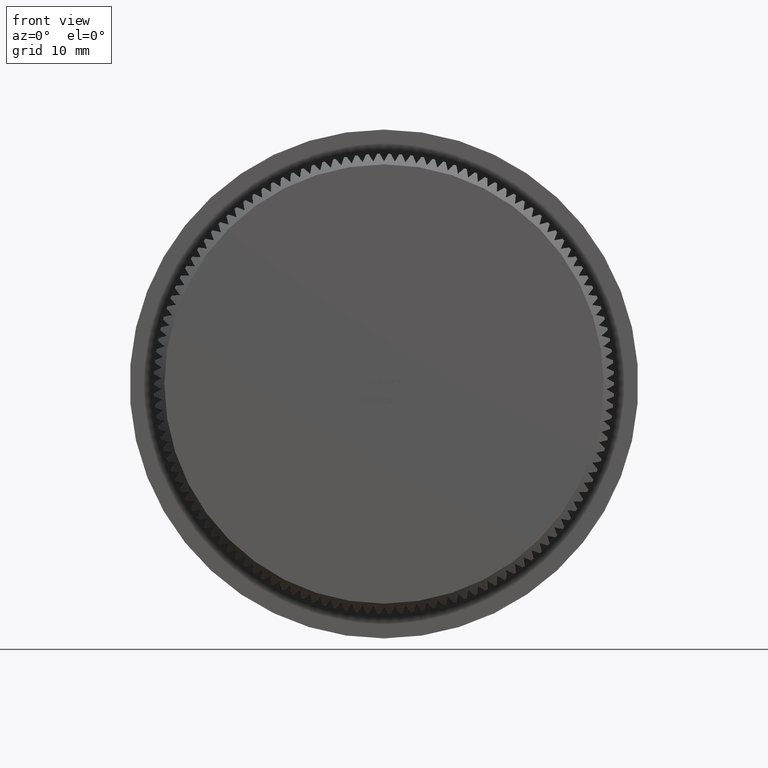
[diagram: clean part render]
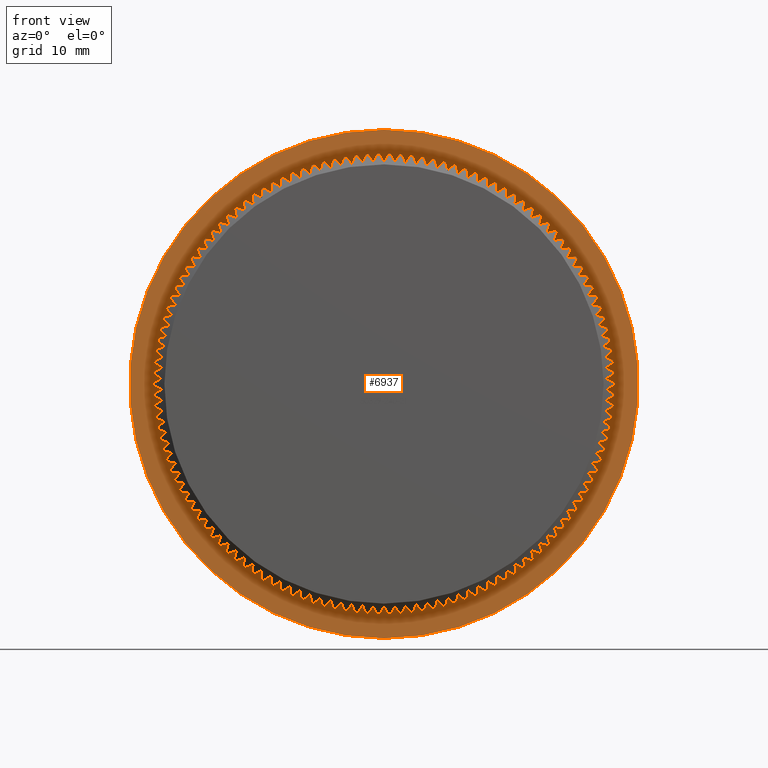
[diagram: same view with one face highlighted and labeled with its STEP entity id]
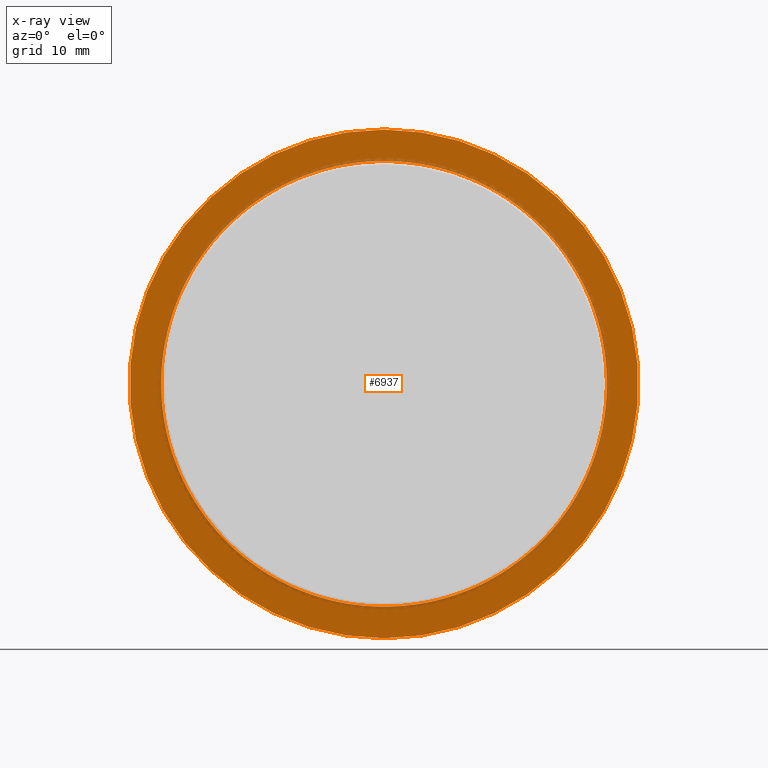
[diagram: x-ray of the same camera — body ghosted, the highlighted face saturated]
A machine part, front view. The second image highlights one B-rep face of the part: STEP entity #6937.
The next image is the same camera in x-ray: the body ghosted, the highlighted face saturated — about 8% of this face is hidden behind the body in this view.
In plain terms, the highlighted planar face has unit normal (0, -1, -0).
Its self-contained STEP definition (entity closure, byte-faithful):
#39 = ORIENTED_EDGE ( 'NONE', *, *, #23851, .F. ) ;
#68 = ORIENTED_EDGE ( 'NONE', *, *, #12948, .F. ) ;
#88 = AXIS2_PLACEMENT_3D ( 'NONE', #11685, #4343, #2020 ) ;
#92 = VERTEX_POINT ( 'NONE', #19919 ) ;
#112 = ORIENTED_EDGE ( 'NONE', *, *, #22344, .F. ) ;
#125 = DIRECTION ( 'NONE',  ( 0.0000000000000000000, 0.0000000000000000000, -1.000000000000000000 ) ) ;
#140 = AXIS2_PLACEMENT_3D ( 'NONE', #15452, #29635, #4168 ) ;
#164 = DIRECTION ( 'NONE',  ( -0.0000000000000000000, -1.000000000000000000, -0.0000000000000000000 ) ) ;
#166 = CIRCLE ( 'NONE', #6958, 21.15000000000000200 ) ;
#176 = DIRECTION ( 'NONE',  ( 0.0000000000000000000, 0.0000000000000000000, -1.000000000000000000 ) ) ;
#221 = AXIS2_PLACEMENT_3D ( 'NONE', #4701, #9382, #125 ) ;
#262 = CARTESIAN_POINT ( 'NONE',  ( -14.77351537501493800, 8.000000000000001800, -15.13491801973824200 ) ) ;
#291 = DIRECTION ( 'NONE',  ( -0.0000000000000000000, -1.000000000000000000, -0.0000000000000000000 ) ) ;
#330 = CIRCLE ( 'NONE', #22834, 21.15000000000000200 ) ;
#345 = CARTESIAN_POINT ( 'NONE',  ( 0.0000000000000000000, 8.000000000000001800, 0.0000000000000000000 ) ) ;
#346 = VERTEX_POINT ( 'NONE', #4799 ) ;
#349 = VERTEX_POINT ( 'NONE', #7249 ) ;
#355 = EDGE_CURVE ( 'NONE', #18658, #12413, #4572, .T. ) ;
#356 = ORIENTED_EDGE ( 'NONE', *, *, #3813, .F. ) ;
#362 = CIRCLE ( 'NONE', #26722, 21.15000000000000200 ) ;
#370 = DIRECTION ( 'NONE',  ( -0.0000000000000000000, -1.000000000000000000, -0.0000000000000000000 ) ) ;
#372 = EDGE_CURVE ( 'NONE', #20997, #5758, #27873, .T. ) ;
#385 = CIRCLE ( 'NONE', #23198, 21.15000000000000200 ) ;
#421 = VERTEX_POINT ( 'NONE', #22660 ) ;
#450 = CIRCLE ( 'NONE', #29831, 21.15000000000000200 ) ;
#451 = DIRECTION ( 'NONE',  ( -0.0000000000000000000, -1.000000000000000000, -0.0000000000000000000 ) ) ;
#459 = CIRCLE ( 'NONE', #2125, 21.15000000000000200 ) ;
#523 = CARTESIAN_POINT ( 'NONE',  ( 0.0000000000000000000, 8.000000000000001800, 0.0000000000000000000 ) ) ;
#571 = CIRCLE ( 'NONE', #18810, 21.15000000000000200 ) ;
#574 = CIRCLE ( 'NONE', #26004, 21.15000000000000200 ) ;
#595 = ORIENTED_EDGE ( 'NONE', *, *, #29790, .F. ) ;
#610 = CARTESIAN_POINT ( 'NONE',  ( 16.16527748954481000, 7.999999999999998200, -13.63841279936987400 ) ) ;
#641 = CARTESIAN_POINT ( 'NONE',  ( -4.063480072030798400, 8.000000000000005300, -20.75597816784862100 ) ) ;
#679 = ORIENTED_EDGE ( 'NONE', *, *, #18831, .F. ) ;
#742 = EDGE_CURVE ( 'NONE', #11721, #7298, #26368, .T. ) ;
#768 = VERTEX_POINT ( 'NONE', #17738 ) ;
#778 = AXIS2_PLACEMENT_3D ( 'NONE', #5178, #28471, #14700 ) ;
#784 = DIRECTION ( 'NONE',  ( -0.0000000000000000000, -1.000000000000000000, -0.0000000000000000000 ) ) ;
#786 = CARTESIAN_POINT ( 'NONE',  ( 18.95942972380402800, 7.999999999999998200, 9.373501189424178600 ) ) ;
#791 = CARTESIAN_POINT ( 'NONE',  ( 0.0000000000000000000, 8.000000000000001800, 0.0000000000000000000 ) ) ;
#801 = EDGE_CURVE ( 'NONE', #4394, #28949, #26741, .T. ) ;
#806 = CARTESIAN_POINT ( 'NONE',  ( -16.80531792594584300, 8.000000000000001800, -12.84148704036582300 ) ) ;
#829 = AXIS2_PLACEMENT_3D ( 'NONE', #1564, #6656, #1867 ) ;
#843 = AXIS2_PLACEMENT_3D ( 'NONE', #27813, #18918, #21061 ) ;
#880 = AXIS2_PLACEMENT_3D ( 'NONE', #23210, #25948, #11928 ) ;
#927 = VERTEX_POINT ( 'NONE', #4587 ) ;
#1034 = CARTESIAN_POINT ( 'NONE',  ( 0.0000000000000000000, 8.000000000000001800, 0.0000000000000000000 ) ) ;
#1036 = EDGE_CURVE ( 'NONE', #14070, #349, #10719, .T. ) ;
#1046 = ORIENTED_EDGE ( 'NONE', *, *, #24700, .F. ) ;
#1056 = DIRECTION ( 'NONE',  ( 0.0000000000000000000, 0.0000000000000000000, -1.000000000000000000 ) ) ;
#1083 = CIRCLE ( 'NONE', #17198, 21.15000000000000200 ) ;
#1174 = VERTEX_POINT ( 'NONE', #14676 ) ;
#1198 = ORIENTED_EDGE ( 'NONE', *, *, #1843, .F. ) ;
#1255 = CIRCLE ( 'NONE', #4245, 21.15000000000000200 ) ;
#1278 = DIRECTION ( 'NONE',  ( -0.0000000000000000000, -1.000000000000000000, -0.0000000000000000000 ) ) ;
#1310 = EDGE_CURVE ( 'NONE', #22046, #9701, #19046, .T. ) ;
#1313 = CARTESIAN_POINT ( 'NONE',  ( -11.59046453055129300, 8.000000000000008900, 17.69134341891628300 ) ) ;
#1342 = CARTESIAN_POINT ( 'NONE',  ( 0.0000000000000000000, 8.000000000000001800, 0.0000000000000000000 ) ) ;
#1400 = DIRECTION ( 'NONE',  ( 0.0000000000000000000, 0.0000000000000000000, -1.000000000000000000 ) ) ;
#1434 = VERTEX_POINT ( 'NONE', #29980 ) ;
#1435 = VERTEX_POINT ( 'NONE', #13336 ) ;
#1436 = DIRECTION ( 'NONE',  ( 0.0000000000000000000, 0.0000000000000000000, -1.000000000000000000 ) ) ;
#1471 = CARTESIAN_POINT ( 'NONE',  ( 20.84810661170445600, 7.999999999999998200, -3.560751424489657400 ) ) ;
#1501 = DIRECTION ( 'NONE',  ( 0.0000000000000000000, 0.0000000000000000000, -1.000000000000000000 ) ) ;
#1519 = AXIS2_PLACEMENT_3D ( 'NONE', #28514, #451, #16689 ) ;
#1533 = CARTESIAN_POINT ( 'NONE',  ( -5.061526299681717400, 8.000000000000005300, -20.53541943856103600 ) ) ;
#1548 = DIRECTION ( 'NONE',  ( -0.0000000000000000000, -1.000000000000000000, -0.0000000000000000000 ) ) ;
#1564 = CARTESIAN_POINT ( 'NONE',  ( 0.0000000000000000000, 8.000000000000001800, 0.0000000000000000000 ) ) ;
#1612 = DIRECTION ( 'NONE',  ( 0.0000000000000000000, 0.0000000000000000000, -1.000000000000000000 ) ) ;
#1618 = VERTEX_POINT ( 'NONE', #24202 ) ;
#1664 = DIRECTION ( 'NONE',  ( 0.0000000000000000000, 0.0000000000000000000, -1.000000000000000000 ) ) ;
#1676 = CARTESIAN_POINT ( 'NONE',  ( 0.0000000000000000000, 8.000000000000001800, 0.0000000000000000000 ) ) ;
#1734 = DIRECTION ( 'NONE',  ( -0.0000000000000000000, -1.000000000000000000, -0.0000000000000000000 ) ) ;
#1830 = DIRECTION ( 'NONE',  ( 0.0000000000000000000, 0.0000000000000000000, -1.000000000000000000 ) ) ;
#1843 = EDGE_CURVE ( 'NONE', #10794, #18658, #1945, .T. ) ;
#1864 = DIRECTION ( 'NONE',  ( -0.0000000000000000000, -1.000000000000000000, -0.0000000000000000000 ) ) ;
#1867 = DIRECTION ( 'NONE',  ( 0.0000000000000000000, 0.0000000000000000000, -1.000000000000000000 ) ) ;
#1902 = VERTEX_POINT ( 'NONE', #16140 ) ;
#1945 = CIRCLE ( 'NONE', #7225, 21.15000000000000200 ) ;
#2020 = DIRECTION ( 'NONE',  ( 0.0000000000000000000, 0.0000000000000000000, -1.000000000000000000 ) ) ;
#2022 = CARTESIAN_POINT ( 'NONE',  ( 0.0000000000000000000, 8.000000000000001800, 0.0000000000000000000 ) ) ;
#2035 = CIRCLE ( 'NONE', #3051, 21.15000000000000200 ) ;
#2041 = CARTESIAN_POINT ( 'NONE',  ( 0.0000000000000000000, 8.000000000000001800, 0.0000000000000000000 ) ) ;
#2059 = CARTESIAN_POINT ( 'NONE',  ( 0.0000000000000000000, 8.000000000000001800, 0.0000000000000000000 ) ) ;
#2063 = CARTESIAN_POINT ( 'NONE',  ( -15.48748229854283700, 8.000000000000005300, -14.40348541334084100 ) ) ;
#2084 = ORIENTED_EDGE ( 'NONE', *, *, #11775, .F. ) ;
#2091 = ORIENTED_EDGE ( 'NONE', *, *, #12194, .F. ) ;
#2102 = EDGE_CURVE ( 'NONE', #9701, #14070, #4867, .T. ) ;
#2125 = AXIS2_PLACEMENT_3D ( 'NONE', #9228, #11660, #18246 ) ;
#2136 = AXIS2_PLACEMENT_3D ( 'NONE', #7892, #16900, #21595 ) ;
#2178 = AXIS2_PLACEMENT_3D ( 'NONE', #29717, #18479, #15725 ) ;
#2216 = DIRECTION ( 'NONE',  ( -0.0000000000000000000, -1.000000000000000000, -0.0000000000000000000 ) ) ;
#2225 = CARTESIAN_POINT ( 'NONE',  ( -6.047751098132291500, 8.000000000000005300, 20.26689928565886200 ) ) ;
#2291 = VERTEX_POINT ( 'NONE', #26267 ) ;
#2296 = CARTESIAN_POINT ( 'NONE',  ( 0.0000000000000000000, 8.000000000000001800, 0.0000000000000000000 ) ) ;
#2391 = ORIENTED_EDGE ( 'NONE', *, *, #24078, .F. ) ;
#2393 = VERTEX_POINT ( 'NONE', #17888 ) ;
#2398 = DIRECTION ( 'NONE',  ( -0.0000000000000000000, -1.000000000000000000, -0.0000000000000000000 ) ) ;
#2406 = ORIENTED_EDGE ( 'NONE', *, *, #14952, .F. ) ;
#2417 = EDGE_CURVE ( 'NONE', #17602, #27043, #28862, .T. ) ;
#2427 = DIRECTION ( 'NONE',  ( -0.0000000000000000000, -1.000000000000000000, -0.0000000000000000000 ) ) ;
#2434 = CARTESIAN_POINT ( 'NONE',  ( 0.0000000000000000000, 8.000000000000001800, 0.0000000000000000000 ) ) ;
#2443 = ORIENTED_EDGE ( 'NONE', *, *, #16198, .F. ) ;
#2447 = CARTESIAN_POINT ( 'NONE',  ( 0.0000000000000000000, 8.000000000000001800, 0.0000000000000000000 ) ) ;
#2449 = DIRECTION ( 'NONE',  ( -0.0000000000000000000, -1.000000000000000000, -0.0000000000000000000 ) ) ;
#2459 = CARTESIAN_POINT ( 'NONE',  ( 0.0000000000000000000, 8.000000000000001800, 0.0000000000000000000 ) ) ;
#2469 = CARTESIAN_POINT ( 'NONE',  ( 0.0000000000000000000, 8.000000000000001800, 0.0000000000000000000 ) ) ;
#2530 = DIRECTION ( 'NONE',  ( 0.0000000000000000000, 0.0000000000000000000, -1.000000000000000000 ) ) ;
#2544 = AXIS2_PLACEMENT_3D ( 'NONE', #4403, #27815, #11530 ) ;
#2572 = ORIENTED_EDGE ( 'NONE', *, *, #24311, .F. ) ;
#2625 = EDGE_CURVE ( 'NONE', #23343, #9985, #19358, .T. ) ;
#2632 = CARTESIAN_POINT ( 'NONE',  ( 1.021827976964182500, 7.999999999999994700, 21.12530159750372500 ) ) ;
#2641 = VERTEX_POINT ( 'NONE', #14325 ) ;
#2645 = ORIENTED_EDGE ( 'NONE', *, *, #9722, .F. ) ;
#2701 = ORIENTED_EDGE ( 'NONE', *, *, #8121, .F. ) ;
#2735 = ORIENTED_EDGE ( 'NONE', *, *, #15390, .F. ) ;
#2744 = AXIS2_PLACEMENT_3D ( 'NONE', #23114, #11535, #4195 ) ;
#2787 = CARTESIAN_POINT ( 'NONE',  ( 18.48442389005094800, 8.000000000000005300, -10.27854919008095200 ) ) ;
#2815 = EDGE_CURVE ( 'NONE', #29550, #5583, #7763, .T. ) ;
#2819 = ORIENTED_EDGE ( 'NONE', *, *, #20275, .F. ) ;
#2828 = VERTEX_POINT ( 'NONE', #806 ) ;
#2848 = CARTESIAN_POINT ( 'NONE',  ( 21.09444211597502400, 8.000000000000001800, 1.531996023421499300 ) ) ;
#2849 = CARTESIAN_POINT ( 'NONE',  ( 0.0000000000000000000, 8.000000000000001800, 0.0000000000000000000 ) ) ;
#2851 = EDGE_CURVE ( 'NONE', #27938, #29550, #28505, .T. ) ;
#2881 = DIRECTION ( 'NONE',  ( 0.0000000000000000000, 0.0000000000000000000, -1.000000000000000000 ) ) ;
#2882 = EDGE_CURVE ( 'NONE', #24568, #1902, #27755, .T. ) ;
#2952 = CARTESIAN_POINT ( 'NONE',  ( 0.0000000000000000000, 8.000000000000001800, 0.0000000000000000000 ) ) ;
#2970 = ORIENTED_EDGE ( 'NONE', *, *, #17165, .F. ) ;
#2969 = AXIS2_PLACEMENT_3D ( 'NONE', #22540, #29490, #3926 ) ;
#3009 = AXIS2_PLACEMENT_3D ( 'NONE', #19462, #24250, #10341 ) ;
#3012 = DIRECTION ( 'NONE',  ( 0.0000000000000000000, 0.0000000000000000000, -1.000000000000000000 ) ) ;
#3023 = CARTESIAN_POINT ( 'NONE',  ( 0.0000000000000000000, 8.000000000000001800, 0.0000000000000000000 ) ) ;
#3033 = DIRECTION ( 'NONE',  ( 0.0000000000000000000, 0.0000000000000000000, -1.000000000000000000 ) ) ;
#3051 = AXIS2_PLACEMENT_3D ( 'NONE', #16043, #27687, #11600 ) ;
#3059 = EDGE_CURVE ( 'NONE', #30211, #1434, #26281, .T. ) ;
#3062 = DIRECTION ( 'NONE',  ( 0.0000000000000000000, 0.0000000000000000000, -1.000000000000000000 ) ) ;
#3108 = AXIS2_PLACEMENT_3D ( 'NONE', #18409, #20645, #25239 ) ;
#3154 = VERTEX_POINT ( 'NONE', #24355 ) ;
#3177 = ORIENTED_EDGE ( 'NONE', *, *, #12746, .F. ) ;
#3189 = AXIS2_PLACEMENT_3D ( 'NONE', #28632, #28731, #14861 ) ;
#3203 = DIRECTION ( 'NONE',  ( 0.0000000000000000000, 0.0000000000000000000, -1.000000000000000000 ) ) ;
#3242 = ORIENTED_EDGE ( 'NONE', *, *, #5005, .F. ) ;
#3250 = CARTESIAN_POINT ( 'NONE',  ( 16.16527748954453600, 8.000000000000005300, 13.63841279937019700 ) ) ;
#3255 = DIRECTION ( 'NONE',  ( -0.0000000000000000000, -1.000000000000000000, -0.0000000000000000000 ) ) ;
#3331 = CARTESIAN_POINT ( 'NONE',  ( 0.0000000000000000000, 8.000000000000001800, 0.0000000000000000000 ) ) ;
#3404 = AXIS2_PLACEMENT_3D ( 'NONE', #19714, #28816, #5818 ) ;
#3497 = AXIS2_PLACEMENT_3D ( 'NONE', #16676, #25957, #16577 ) ;
#3520 = VERTEX_POINT ( 'NONE', #24375 ) ;
#3595 = CIRCLE ( 'NONE', #25003, 21.15000000000000200 ) ;
#3619 = VERTEX_POINT ( 'NONE', #15524 ) ;
#3683 = CARTESIAN_POINT ( 'NONE',  ( 0.0000000000000000000, 8.000000000000001800, 0.0000000000000000000 ) ) ;
#3813 = EDGE_CURVE ( 'NONE', #2641, #7465, #21157, .T. ) ;
#3826 = EDGE_CURVE ( 'NONE', #19473, #2393, #27732, .T. ) ;
#3827 = ORIENTED_EDGE ( 'NONE', *, *, #3826, .F. ) ;
#3869 = EDGE_CURVE ( 'NONE', #21540, #25664, #28452, .T. ) ;
#3877 = ORIENTED_EDGE ( 'NONE', *, *, #22129, .F. ) ;
#3926 = DIRECTION ( 'NONE',  ( 0.0000000000000000000, 0.0000000000000000000, -1.000000000000000000 ) ) ;
#3945 = DIRECTION ( 'NONE',  ( 0.0000000000000000000, 0.0000000000000000000, -1.000000000000000000 ) ) ;
#3995 = CIRCLE ( 'NONE', #2178, 21.15000000000000200 ) ;
#4046 = CARTESIAN_POINT ( 'NONE',  ( 0.0000000000000000000, 8.000000000000001800, 0.0000000000000000000 ) ) ;
#4048 = CARTESIAN_POINT ( 'NONE',  ( 0.0000000000000000000, 8.000000000000001800, 0.0000000000000000000 ) ) ;
#4072 = AXIS2_PLACEMENT_3D ( 'NONE', #22729, #6786, #13454 ) ;
#4081 = EDGE_CURVE ( 'NONE', #421, #11893, #17884, .T. ) ;
#4136 = DIRECTION ( 'NONE',  ( -0.0000000000000000000, -1.000000000000000000, -0.0000000000000000000 ) ) ;
#4141 = CIRCLE ( 'NONE', #16314, 21.15000000000000200 ) ;
#4168 = DIRECTION ( 'NONE',  ( 0.0000000000000000000, 0.0000000000000000000, -1.000000000000000000 ) ) ;
#4195 = DIRECTION ( 'NONE',  ( 0.0000000000000000000, 0.0000000000000000000, -1.000000000000000000 ) ) ;
#4245 = AXIS2_PLACEMENT_3D ( 'NONE', #27178, #25013, #13509 ) ;
#4249 = DIRECTION ( 'NONE',  ( 0.0000000000000000000, 0.0000000000000000000, -1.000000000000000000 ) ) ;
#4283 = CARTESIAN_POINT ( 'NONE',  ( 14.02504422179295700, 7.999999999999998200, -15.83100232381866900 ) ) ;
#4310 = EDGE_CURVE ( 'NONE', #8549, #17170, #20768, .T. ) ;
#4343 = DIRECTION ( 'NONE',  ( -0.0000000000000000000, -1.000000000000000000, -0.0000000000000000000 ) ) ;
#4362 = EDGE_CURVE ( 'NONE', #12413, #7301, #24766, .T. ) ;
#4381 = AXIS2_PLACEMENT_3D ( 'NONE', #10516, #8486, #8586 ) ;
#4393 = EDGE_CURVE ( 'NONE', #10688, #26131, #14583, .T. ) ;
#4394 = VERTEX_POINT ( 'NONE', #9201 ) ;
#4403 = CARTESIAN_POINT ( 'NONE',  ( 0.0000000000000000000, 8.000000000000001800, 0.0000000000000000000 ) ) ;
#4432 = DIRECTION ( 'NONE',  ( -0.0000000000000000000, -1.000000000000000000, -0.0000000000000000000 ) ) ;
#4490 = AXIS2_PLACEMENT_3D ( 'NONE', #29932, #6622, #9050 ) ;
#4572 = CIRCLE ( 'NONE', #17696, 21.15000000000000200 ) ;
#4587 = CARTESIAN_POINT ( 'NONE',  ( -14.02504422179284500, 8.000000000000005300, 15.83100232381876700 ) ) ;
#4591 = CARTESIAN_POINT ( 'NONE',  ( 14.77351537501484000, 8.000000000000005300, 15.13491801973833600 ) ) ;
#4592 = EDGE_CURVE ( 'NONE', #25664, #22880, #17121, .T. ) ;
#4607 = DIRECTION ( 'NONE',  ( 0.0000000000000000000, 0.0000000000000000000, -1.000000000000000000 ) ) ;
#4617 = DIRECTION ( 'NONE',  ( -0.0000000000000000000, -1.000000000000000000, -0.0000000000000000000 ) ) ;
#4622 = ORIENTED_EDGE ( 'NONE', *, *, #15702, .F. ) ;
#4655 = EDGE_CURVE ( 'NONE', #3154, #2641, #20384, .T. ) ;
#4684 = AXIS2_PLACEMENT_3D ( 'NONE', #19141, #7788, #21493 ) ;
#4701 = CARTESIAN_POINT ( 'NONE',  ( 0.0000000000000000000, 8.000000000000001800, 0.0000000000000000000 ) ) ;
#4706 = VERTEX_POINT ( 'NONE', #30134 ) ;
#4707 = CARTESIAN_POINT ( 'NONE',  ( 7.019851093668118700, 7.999999999999991100, 19.95104485040136700 ) ) ;
#4740 = DIRECTION ( 'NONE',  ( 0.0000000000000000000, 0.0000000000000000000, -1.000000000000000000 ) ) ;
#4751 = CIRCLE ( 'NONE', #2744, 21.15000000000000200 ) ;
#4762 = DIRECTION ( 'NONE',  ( 0.0000000000000000000, 0.0000000000000000000, -1.000000000000000000 ) ) ;
#4799 = CARTESIAN_POINT ( 'NONE',  ( -21.09444211597504200, 8.000000000000005300, 1.531996023421204700 ) ) ;
#4808 = DIRECTION ( 'NONE',  ( 0.0000000000000000000, 0.0000000000000000000, -1.000000000000000000 ) ) ;
#4860 = DIRECTION ( 'NONE',  ( -0.0000000000000000000, -1.000000000000000000, -0.0000000000000000000 ) ) ;
#4867 = CIRCLE ( 'NONE', #18891, 21.15000000000000200 ) ;
#4960 = EDGE_CURVE ( 'NONE', #11640, #18677, #18557, .T. ) ;
#4990 = DIRECTION ( 'NONE',  ( -0.0000000000000000000, -1.000000000000000000, -0.0000000000000000000 ) ) ;
#5005 = EDGE_CURVE ( 'NONE', #16742, #346, #9482, .T. ) ;
#5044 = EDGE_CURVE ( 'NONE', #24345, #4706, #22942, .T. ) ;
#5050 = CIRCLE ( 'NONE', #27393, 21.15000000000000200 ) ;
#5067 = ORIENTED_EDGE ( 'NONE', *, *, #22038, .F. ) ;
#5079 = AXIS2_PLACEMENT_3D ( 'NONE', #9786, #19015, #3062 ) ;
#5141 = VERTEX_POINT ( 'NONE', #9289 ) ;
#5147 = CIRCLE ( 'NONE', #2544, 21.15000000000000200 ) ;
#5159 = CARTESIAN_POINT ( 'NONE',  ( 0.0000000000000000000, 8.000000000000001800, 0.0000000000000000000 ) ) ;
#5177 = VERTEX_POINT ( 'NONE', #7347 ) ;
#5178 = CARTESIAN_POINT ( 'NONE',  ( 0.0000000000000000000, 8.000000000000001800, 0.0000000000000000000 ) ) ;
#5214 = AXIS2_PLACEMENT_3D ( 'NONE', #16355, #2449, #7038 ) ;
#5248 = AXIS2_PLACEMENT_3D ( 'NONE', #29375, #22320, #5773 ) ;
#5280 = DIRECTION ( 'NONE',  ( 0.0000000000000000000, 0.0000000000000000000, -1.000000000000000000 ) ) ;
#5294 = DIRECTION ( 'NONE',  ( 0.0000000000000000000, 0.0000000000000000000, -1.000000000000000000 ) ) ;
#5298 = EDGE_CURVE ( 'NONE', #17455, #1435, #22206, .T. ) ;
#5301 = EDGE_CURVE ( 'NONE', #20036, #19967, #28060, .T. ) ;
#5319 = DIRECTION ( 'NONE',  ( 0.0000000000000000000, 0.0000000000000000000, -1.000000000000000000 ) ) ;
#5389 = ORIENTED_EDGE ( 'NONE', *, *, #14144, .F. ) ;
#5411 = VERTEX_POINT ( 'NONE', #22685 ) ;
#5455 = CARTESIAN_POINT ( 'NONE',  ( 0.0000000000000000000, 8.000000000000001800, 0.0000000000000000000 ) ) ;
#5461 = DIRECTION ( 'NONE',  ( -0.0000000000000000000, -1.000000000000000000, -0.0000000000000000000 ) ) ;
#5489 = VERTEX_POINT ( 'NONE', #11816 ) ;
#5512 = AXIS2_PLACEMENT_3D ( 'NONE', #15507, #8730, #29693 ) ;
#5535 = CIRCLE ( 'NONE', #10295, 21.15000000000000200 ) ;
#5559 = AXIS2_PLACEMENT_3D ( 'NONE', #3683, #17310, #28943 ) ;
#5572 = CARTESIAN_POINT ( 'NONE',  ( 0.0000000000000000000, 8.000000000000001800, 0.0000000000000000000 ) ) ;
#5583 = VERTEX_POINT ( 'NONE', #10133 ) ;
#5716 = EDGE_CURVE ( 'NONE', #9640, #26710, #3595, .T. ) ;
#5739 = ORIENTED_EDGE ( 'NONE', *, *, #5301, .F. ) ;
#5758 = VERTEX_POINT ( 'NONE', #24536 ) ;
#5773 = DIRECTION ( 'NONE',  ( 0.0000000000000000000, 0.0000000000000000000, -1.000000000000000000 ) ) ;
#5796 = CARTESIAN_POINT ( 'NONE',  ( 0.0000000000000000000, 8.000000000000001800, 0.0000000000000000000 ) ) ;
#5818 = DIRECTION ( 'NONE',  ( 0.0000000000000000000, 0.0000000000000000000, -1.000000000000000000 ) ) ;
#5829 = DIRECTION ( 'NONE',  ( -0.0000000000000000000, -1.000000000000000000, -0.0000000000000000000 ) ) ;
#5853 = CARTESIAN_POINT ( 'NONE',  ( -1.021827976964477100, 7.999999999999994700, 21.12530159750371100 ) ) ;
#5868 = ORIENTED_EDGE ( 'NONE', *, *, #12128, .F. ) ;
#5894 = CIRCLE ( 'NONE', #22790, 21.15000000000000200 ) ;
#5928 = CIRCLE ( 'NONE', #8367, 21.15000000000000200 ) ;
#5964 = ORIENTED_EDGE ( 'NONE', *, *, #27325, .F. ) ;
#5970 = CARTESIAN_POINT ( 'NONE',  ( 0.0000000000000000000, 8.000000000000001800, 0.0000000000000000000 ) ) ;
#5972 = ORIENTED_EDGE ( 'NONE', *, *, #12696, .F. ) ;
#6022 = EDGE_CURVE ( 'NONE', #9192, #5411, #15948, .T. ) ;
#6028 = CIRCLE ( 'NONE', #25474, 21.15000000000000200 ) ;
#6072 = DIRECTION ( 'NONE',  ( -0.0000000000000000000, -1.000000000000000000, -0.0000000000000000000 ) ) ;
#6077 = VERTEX_POINT ( 'NONE', #10706 ) ;
#6118 = DIRECTION ( 'NONE',  ( 0.0000000000000000000, 0.0000000000000000000, -1.000000000000000000 ) ) ;
#6138 = CIRCLE ( 'NONE', #15814, 21.15000000000000200 ) ;
#6143 = AXIS2_PLACEMENT_3D ( 'NONE', #2022, #29710, #1830 ) ;
#6155 = FACE_OUTER_BOUND ( 'NONE', #26740, .T. ) ;
#6195 = EDGE_CURVE ( 'NONE', #9366, #9192, #22886, .T. ) ;
#6234 = VERTEX_POINT ( 'NONE', #6450 ) ;
#6253 = EDGE_CURVE ( 'NONE', #1434, #17933, #1083, .T. ) ;
#6255 = DIRECTION ( 'NONE',  ( -0.0000000000000000000, -1.000000000000000000, -0.0000000000000000000 ) ) ;
#6315 = DIRECTION ( 'NONE',  ( -0.0000000000000000000, -1.000000000000000000, -0.0000000000000000000 ) ) ;
#6339 = CARTESIAN_POINT ( 'NONE',  ( -20.65172881723908900, 7.999999999999998200, -4.563835761639181100 ) ) ;
#6365 = VERTEX_POINT ( 'NONE', #4707 ) ;
#6387 = ORIENTED_EDGE ( 'NONE', *, *, #27222, .F. ) ;
#6412 = AXIS2_PLACEMENT_3D ( 'NONE', #3331, #12600, #28884 ) ;
#6414 = DIRECTION ( 'NONE',  ( 0.0000000000000000000, 0.0000000000000000000, -1.000000000000000000 ) ) ;
#6416 = ORIENTED_EDGE ( 'NONE', *, *, #7408, .F. ) ;
#6448 = ORIENTED_EDGE ( 'NONE', *, *, #15428, .F. ) ;
#6450 = CARTESIAN_POINT ( 'NONE',  ( 14.77351537501514900, 8.000000000000005300, -15.13491801973803200 ) ) ;
#6519 = EDGE_CURVE ( 'NONE', #9071, #768, #11966, .T. ) ;
#6521 = CARTESIAN_POINT ( 'NONE',  ( 0.0000000000000000000, 8.000000000000001800, 0.0000000000000000000 ) ) ;
#6541 = CIRCLE ( 'NONE', #24781, 21.15000000000000200 ) ;
#6553 = ORIENTED_EDGE ( 'NONE', *, *, #17660, .F. ) ;
#6555 = CARTESIAN_POINT ( 'NONE',  ( -20.11484531964252300, 7.999999999999988500, 6.535709431030082500 ) ) ;
#6586 = VERTEX_POINT ( 'NONE', #15018 ) ;
#6597 = VERTEX_POINT ( 'NONE', #12711 ) ;
#6622 = DIRECTION ( 'NONE',  ( -0.0000000000000000000, -1.000000000000000000, -0.0000000000000000000 ) ) ;
#6635 = ORIENTED_EDGE ( 'NONE', *, *, #8291, .F. ) ;
#6656 = DIRECTION ( 'NONE',  ( -0.0000000000000000000, -1.000000000000000000, -0.0000000000000000000 ) ) ;
#6696 = EDGE_CURVE ( 'NONE', #23367, #14689, #9425, .T. ) ;
#6751 = DIRECTION ( 'NONE',  ( -0.0000000000000000000, -1.000000000000000000, -0.0000000000000000000 ) ) ;
#6754 = DIRECTION ( 'NONE',  ( 0.0000000000000000000, 0.0000000000000000000, -1.000000000000000000 ) ) ;
#6786 = DIRECTION ( 'NONE',  ( -0.0000000000000000000, -1.000000000000000000, -0.0000000000000000000 ) ) ;
#6842 = VERTEX_POINT ( 'NONE', #18772 ) ;
#6883 = CIRCLE ( 'NONE', #22243, 21.15000000000000200 ) ;
#6920 = ORIENTED_EDGE ( 'NONE', *, *, #19742, .F. ) ;
#6937 = ADVANCED_FACE ( 'NONE', ( #6155, #19570 ), #26413, .T. ) ;
#6958 = AXIS2_PLACEMENT_3D ( 'NONE', #25998, #19058, #16807 ) ;
#7002 = CARTESIAN_POINT ( 'NONE',  ( 0.0000000000000000000, 8.000000000000001800, 0.0000000000000000000 ) ) ;
#7007 = DIRECTION ( 'NONE',  ( 0.0000000000000000000, 0.0000000000000000000, -1.000000000000000000 ) ) ;
#7038 = DIRECTION ( 'NONE',  ( 0.0000000000000000000, 0.0000000000000000000, -1.000000000000000000 ) ) ;
#7044 = ORIENTED_EDGE ( 'NONE', *, *, #4081, .F. ) ;
#7053 = CARTESIAN_POINT ( 'NONE',  ( 0.0000000000000000000, 8.000000000000000000, 0.0000000000000000000 ) ) ;
#7102 = CARTESIAN_POINT ( 'NONE',  ( 0.0000000000000000000, 8.000000000000001800, 0.0000000000000000000 ) ) ;
#7111 = ORIENTED_EDGE ( 'NONE', *, *, #4592, .F. ) ;
#7186 = EDGE_CURVE ( 'NONE', #6842, #16037, #10489, .T. ) ;
#7195 = CIRCLE ( 'NONE', #17203, 24.14999999999999900 ) ;
#7210 = CIRCLE ( 'NONE', #3189, 21.15000000000000200 ) ;
#7225 = AXIS2_PLACEMENT_3D ( 'NONE', #29621, #27062, #15437 ) ;
#7226 = VERTEX_POINT ( 'NONE', #29994 ) ;
#7249 = CARTESIAN_POINT ( 'NONE',  ( -18.95942972380409600, 8.000000000000001800, -9.373501189424038300 ) ) ;
#7266 = DIRECTION ( 'NONE',  ( 0.0000000000000000000, 0.0000000000000000000, -1.000000000000000000 ) ) ;
#7298 = VERTEX_POINT ( 'NONE', #262 ) ;
#7301 = VERTEX_POINT ( 'NONE', #7471 ) ;
#7304 = ORIENTED_EDGE ( 'NONE', *, *, #1036, .F. ) ;
#7347 = CARTESIAN_POINT ( 'NONE',  ( -21.14382449779608600, 7.999999999999998200, -0.5110632117442733800 ) ) ;
#7408 = EDGE_CURVE ( 'NONE', #1435, #5489, #15188, .T. ) ;
#7428 = DIRECTION ( 'NONE',  ( 0.0000000000000000000, 0.0000000000000000000, -1.000000000000000000 ) ) ;
#7465 = VERTEX_POINT ( 'NONE', #6339 ) ;
#7470 = CIRCLE ( 'NONE', #12412, 21.15000000000000200 ) ;
#7471 = CARTESIAN_POINT ( 'NONE',  ( 17.40610876365093800, 8.000000000000008900, -12.01456939336379500 ) ) ;
#7553 = VERTEX_POINT ( 'NONE', #20221 ) ;
#7618 = ORIENTED_EDGE ( 'NONE', *, *, #7186, .F. ) ;
#7620 = DIRECTION ( 'NONE',  ( 0.0000000000000000000, 0.0000000000000000000, -1.000000000000000000 ) ) ;
#7623 = CARTESIAN_POINT ( 'NONE',  ( 0.0000000000000000000, 8.000000000000001800, 0.0000000000000000000 ) ) ;
#7703 = ORIENTED_EDGE ( 'NONE', *, *, #5298, .F. ) ;
#7763 = CIRCLE ( 'NONE', #23007, 21.15000000000000200 ) ;
#7783 = DIRECTION ( 'NONE',  ( -0.0000000000000000000, -1.000000000000000000, -0.0000000000000000000 ) ) ;
#7788 = DIRECTION ( 'NONE',  ( -0.0000000000000000000, -1.000000000000000000, -0.0000000000000000000 ) ) ;
#7806 = DIRECTION ( 'NONE',  ( -0.0000000000000000000, -1.000000000000000000, -0.0000000000000000000 ) ) ;
#7817 = ORIENTED_EDGE ( 'NONE', *, *, #20876, .F. ) ;
#7838 = AXIS2_PLACEMENT_3D ( 'NONE', #5796, #12802, #8328 ) ;
#7865 = CARTESIAN_POINT ( 'NONE',  ( 0.0000000000000000000, 8.000000000000001800, 0.0000000000000000000 ) ) ;
#7892 = CARTESIAN_POINT ( 'NONE',  ( 0.0000000000000000000, 8.000000000000001800, 0.0000000000000000000 ) ) ;
#7909 = EDGE_CURVE ( 'NONE', #25142, #8490, #12340, .T. ) ;
#7918 = CARTESIAN_POINT ( 'NONE',  ( 20.99579268717386800, 8.000000000000005300, -2.549350787399869800 ) ) ;
#7922 = CARTESIAN_POINT ( 'NONE',  ( 0.0000000000000000000, 8.000000000000001800, 0.0000000000000000000 ) ) ;
#7931 = ORIENTED_EDGE ( 'NONE', *, *, #11983, .F. ) ;
#7980 = CARTESIAN_POINT ( 'NONE',  ( 0.0000000000000000000, 8.000000000000001800, 0.0000000000000000000 ) ) ;
#8031 = EDGE_CURVE ( 'NONE', #8490, #29745, #25435, .T. ) ;
#8042 = VERTEX_POINT ( 'NONE', #8154 ) ;
#8049 = CARTESIAN_POINT ( 'NONE',  ( 6.047751098132437200, 8.000000000000001800, -20.26689928565882000 ) ) ;
#8054 = DIRECTION ( 'NONE',  ( 0.0000000000000000000, 0.0000000000000000000, -1.000000000000000000 ) ) ;
#8062 = AXIS2_PLACEMENT_3D ( 'NONE', #12314, #26651, #15025 ) ;
#8068 = AXIS2_PLACEMENT_3D ( 'NONE', #2849, #9960, #21245 ) ;
#8121 = EDGE_CURVE ( 'NONE', #11136, #25238, #5050, .T. ) ;
#8139 = AXIS2_PLACEMENT_3D ( 'NONE', #23362, #2427, #4762 ) ;
#8154 = CARTESIAN_POINT ( 'NONE',  ( 2.957522019940857900E-015, 8.000000000000000000, 24.14999999999999900 ) ) ;
#8196 = ORIENTED_EDGE ( 'NONE', *, *, #9588, .F. ) ;
#8242 = VERTEX_POINT ( 'NONE', #27884 ) ;
#8291 = EDGE_CURVE ( 'NONE', #19486, #3619, #15927, .T. ) ;
#8319 = ORIENTED_EDGE ( 'NONE', *, *, #27536, .F. ) ;
#8326 = EDGE_CURVE ( 'NONE', #18005, #27957, #9769, .T. ) ;
#8328 = DIRECTION ( 'NONE',  ( 0.0000000000000000000, 0.0000000000000000000, -1.000000000000000000 ) ) ;
#8367 = AXIS2_PLACEMENT_3D ( 'NONE', #523, #23701, #11931 ) ;
#8390 = CARTESIAN_POINT ( 'NONE',  ( 20.99579268717382200, 7.999999999999991100, 2.549350787400310300 ) ) ;
#8401 = DIRECTION ( 'NONE',  ( 0.0000000000000000000, 0.0000000000000000000, -1.000000000000000000 ) ) ;
#8435 = ORIENTED_EDGE ( 'NONE', *, *, #4960, .F. ) ;
#8446 = CIRCLE ( 'NONE', #778, 21.15000000000000200 ) ;
#8456 = DIRECTION ( 'NONE',  ( 0.0000000000000000000, 0.0000000000000000000, -1.000000000000000000 ) ) ;
#8463 = DIRECTION ( 'NONE',  ( -0.0000000000000000000, -1.000000000000000000, -0.0000000000000000000 ) ) ;
#8486 = DIRECTION ( 'NONE',  ( -0.0000000000000000000, -1.000000000000000000, -0.0000000000000000000 ) ) ;
#8490 = VERTEX_POINT ( 'NONE', #15299 ) ;
#8549 = VERTEX_POINT ( 'NONE', #29081 ) ;
#8578 = CARTESIAN_POINT ( 'NONE',  ( 0.0000000000000000000, 8.000000000000001800, 0.0000000000000000000 ) ) ;
#8586 = DIRECTION ( 'NONE',  ( 0.0000000000000000000, 0.0000000000000000000, -1.000000000000000000 ) ) ;
#8605 = ORIENTED_EDGE ( 'NONE', *, *, #4362, .F. ) ;
#8660 = DIRECTION ( 'NONE',  ( 0.0000000000000000000, 0.0000000000000000000, -1.000000000000000000 ) ) ;
#8730 = DIRECTION ( 'NONE',  ( -0.0000000000000000000, -1.000000000000000000, -0.0000000000000000000 ) ) ;
#8736 = EDGE_CURVE ( 'NONE', #27957, #10705, #11581, .T. ) ;
#8741 = DIRECTION ( 'NONE',  ( 0.0000000000000000000, 0.0000000000000000000, -1.000000000000000000 ) ) ;
#8812 = ORIENTED_EDGE ( 'NONE', *, *, #2625, .F. ) ;
#8839 = CARTESIAN_POINT ( 'NONE',  ( 1.021827976964625200, 7.999999999999994700, -21.12530159750370400 ) ) ;
#8865 = CIRCLE ( 'NONE', #27037, 21.15000000000000200 ) ;
#8876 = CIRCLE ( 'NONE', #12232, 21.15000000000000200 ) ;
#8937 = CIRCLE ( 'NONE', #8139, 21.15000000000000200 ) ;
#9013 = EDGE_CURVE ( 'NONE', #20990, #9225, #26109, .T. ) ;
#9050 = DIRECTION ( 'NONE',  ( 0.0000000000000000000, 0.0000000000000000000, -1.000000000000000000 ) ) ;
#9060 = CIRCLE ( 'NONE', #8068, 21.15000000000000200 ) ;
#9071 = VERTEX_POINT ( 'NONE', #17716 ) ;
#9080 = DIRECTION ( 'NONE',  ( 0.0000000000000000000, 0.0000000000000000000, -1.000000000000000000 ) ) ;
#9192 = VERTEX_POINT ( 'NONE', #25668 ) ;
#9201 = CARTESIAN_POINT ( 'NONE',  ( -4.063480072030942300, 7.999999999999994700, 20.75597816784859600 ) ) ;
#9204 = ORIENTED_EDGE ( 'NONE', *, *, #13014, .F. ) ;
#9225 = VERTEX_POINT ( 'NONE', #21276 ) ;
#9228 = CARTESIAN_POINT ( 'NONE',  ( 0.0000000000000000000, 8.000000000000001800, 0.0000000000000000000 ) ) ;
#9229 = AXIS2_PLACEMENT_3D ( 'NONE', #21164, #11629, #7266 ) ;
#9236 = EDGE_CURVE ( 'NONE', #6586, #421, #27585, .T. ) ;
#9237 = ORIENTED_EDGE ( 'NONE', *, *, #22519, .F. ) ;
#9245 = CARTESIAN_POINT ( 'NONE',  ( -6.047751098132152900, 8.000000000000005300, -20.26689928565890500 ) ) ;
#9289 = CARTESIAN_POINT ( 'NONE',  ( -14.02504422179273600, 8.000000000000005300, -15.83100232381886500 ) ) ;
#9339 = ORIENTED_EDGE ( 'NONE', *, *, #25895, .F. ) ;
#9366 = VERTEX_POINT ( 'NONE', #10490 ) ;
#9382 = DIRECTION ( 'NONE',  ( -0.0000000000000000000, -1.000000000000000000, -0.0000000000000000000 ) ) ;
#9385 = CARTESIAN_POINT ( 'NONE',  ( 6.047751098132011700, 8.000000000000005300, 20.26689928565894400 ) ) ;
#9425 = CIRCLE ( 'NONE', #88, 21.15000000000000200 ) ;
#9434 = VERTEX_POINT ( 'NONE', #22372 ) ;
#9435 = CARTESIAN_POINT ( 'NONE',  ( 20.65172881723905400, 8.000000000000005300, 4.563835761639329500 ) ) ;
#9450 = EDGE_CURVE ( 'NONE', #349, #9071, #6028, .T. ) ;
#9470 = DIRECTION ( 'NONE',  ( -0.0000000000000000000, -1.000000000000000000, -0.0000000000000000000 ) ) ;
#9482 = CIRCLE ( 'NONE', #829, 21.15000000000000200 ) ;
#9510 = CARTESIAN_POINT ( 'NONE',  ( 0.0000000000000000000, 8.000000000000001800, 0.0000000000000000000 ) ) ;
#9512 = CIRCLE ( 'NONE', #24330, 21.15000000000000200 ) ;
#9588 = EDGE_CURVE ( 'NONE', #27704, #2291, #26174, .T. ) ;
#9628 = EDGE_CURVE ( 'NONE', #21710, #7553, #25789, .T. ) ;
#9640 = VERTEX_POINT ( 'NONE', #23287 ) ;
#9701 = VERTEX_POINT ( 'NONE', #12670 ) ;
#9714 = CARTESIAN_POINT ( 'NONE',  ( 19.39015493094579800, 8.000000000000001800, -8.446560942414281600 ) ) ;
#9722 = EDGE_CURVE ( 'NONE', #28561, #22046, #8865, .T. ) ;
#9726 = EDGE_CURVE ( 'NONE', #18125, #20248, #5535, .T. ) ;
#9747 = AXIS2_PLACEMENT_3D ( 'NONE', #26717, #19669, #1501 ) ;
#9769 = CIRCLE ( 'NONE', #22688, 21.15000000000000200 ) ;
#9786 = CARTESIAN_POINT ( 'NONE',  ( 0.0000000000000000000, 8.000000000000001800, 0.0000000000000000000 ) ) ;
#9846 = DIRECTION ( 'NONE',  ( 0.0000000000000000000, 0.0000000000000000000, -1.000000000000000000 ) ) ;
#9894 = DIRECTION ( 'NONE',  ( -0.0000000000000000000, -1.000000000000000000, -0.0000000000000000000 ) ) ;
#9954 = CARTESIAN_POINT ( 'NONE',  ( 0.0000000000000000000, 8.000000000000001800, 0.0000000000000000000 ) ) ;
#9958 = AXIS2_PLACEMENT_3D ( 'NONE', #20791, #27847, #25588 ) ;
#9960 = DIRECTION ( 'NONE',  ( -0.0000000000000000000, -1.000000000000000000, -0.0000000000000000000 ) ) ;
#9985 = VERTEX_POINT ( 'NONE', #1533 ) ;
#10006 = AXIS2_PLACEMENT_3D ( 'NONE', #14763, #7783, #19433 ) ;
#10011 = AXIS2_PLACEMENT_3D ( 'NONE', #27021, #15293, #1400 ) ;
#10035 = DIRECTION ( 'NONE',  ( 0.0000000000000000000, 0.0000000000000000000, -1.000000000000000000 ) ) ;
#10041 = ORIENTED_EDGE ( 'NONE', *, *, #11809, .F. ) ;
#10066 = CARTESIAN_POINT ( 'NONE',  ( 0.0000000000000000000, 8.000000000000001800, 0.0000000000000000000 ) ) ;
#10098 = CARTESIAN_POINT ( 'NONE',  ( 0.0000000000000000000, 8.000000000000001800, 0.0000000000000000000 ) ) ;
#10123 = CARTESIAN_POINT ( 'NONE',  ( 0.0000000000000000000, 8.000000000000001800, 0.0000000000000000000 ) ) ;
#10128 = DIRECTION ( 'NONE',  ( 0.0000000000000000000, 0.0000000000000000000, -1.000000000000000000 ) ) ;
#10133 = CARTESIAN_POINT ( 'NONE',  ( 17.96624682782003600, 8.000000000000005300, 11.15959116284492600 ) ) ;
#10162 = EDGE_CURVE ( 'NONE', #22880, #6586, #19772, .T. ) ;
#10164 = VERTEX_POINT ( 'NONE', #2225 ) ;
#10185 = CARTESIAN_POINT ( 'NONE',  ( 0.0000000000000000000, 8.000000000000001800, 0.0000000000000000000 ) ) ;
#10224 = CIRCLE ( 'NONE', #5079, 21.15000000000000200 ) ;
#10248 = DIRECTION ( 'NONE',  ( -0.0000000000000000000, -1.000000000000000000, -0.0000000000000000000 ) ) ;
#10258 = DIRECTION ( 'NONE',  ( -0.0000000000000000000, -1.000000000000000000, -0.0000000000000000000 ) ) ;
#10268 = DIRECTION ( 'NONE',  ( 0.0000000000000000000, 0.0000000000000000000, -1.000000000000000000 ) ) ;
#10295 = AXIS2_PLACEMENT_3D ( 'NONE', #12469, #19749, #10128 ) ;
#10341 = DIRECTION ( 'NONE',  ( 0.0000000000000000000, 0.0000000000000000000, -1.000000000000000000 ) ) ;
#10365 = AXIS2_PLACEMENT_3D ( 'NONE', #10185, #3255, #8054 ) ;
#10405 = DIRECTION ( 'NONE',  ( 0.0000000000000000000, 0.0000000000000000000, -1.000000000000000000 ) ) ;
#10451 = ORIENTED_EDGE ( 'NONE', *, *, #17876, .F. ) ;
#10464 = EDGE_CURVE ( 'NONE', #23547, #21710, #12517, .T. ) ;
#10472 = CARTESIAN_POINT ( 'NONE',  ( -13.24381692793535900, 8.000000000000001800, 16.49011258843713500 ) ) ;
#10489 = CIRCLE ( 'NONE', #29132, 21.15000000000000200 ) ;
#10490 = CARTESIAN_POINT ( 'NONE',  ( 10.72220090815758600, 7.999999999999998200, -18.23065845451295900 ) ) ;
#10511 = CARTESIAN_POINT ( 'NONE',  ( 0.0000000000000000000, 8.000000000000001800, 0.0000000000000000000 ) ) ;
#10516 = CARTESIAN_POINT ( 'NONE',  ( 0.0000000000000000000, 8.000000000000001800, 0.0000000000000000000 ) ) ;
#10530 = VERTEX_POINT ( 'NONE', #7918 ) ;
#10589 = VERTEX_POINT ( 'NONE', #24955 ) ;
#10600 = EDGE_CURVE ( 'NONE', #24242, #27116, #15402, .T. ) ;
#10684 = DIRECTION ( 'NONE',  ( -0.0000000000000000000, -1.000000000000000000, -0.0000000000000000000 ) ) ;
#10688 = VERTEX_POINT ( 'NONE', #27627 ) ;
#10702 = CARTESIAN_POINT ( 'NONE',  ( 0.0000000000000000000, 8.000000000000001800, 0.0000000000000000000 ) ) ;
#10705 = VERTEX_POINT ( 'NONE', #20882 ) ;
#10706 = CARTESIAN_POINT ( 'NONE',  ( -21.09444211597503500, 8.000000000000001800, -1.531996023421352100 ) ) ;
#10719 = CIRCLE ( 'NONE', #29051, 21.15000000000000200 ) ;
#10731 = CIRCLE ( 'NONE', #22109, 21.15000000000000200 ) ;
#10784 = DIRECTION ( 'NONE',  ( -0.0000000000000000000, -1.000000000000000000, -0.0000000000000000000 ) ) ;
#10794 = VERTEX_POINT ( 'NONE', #21288 ) ;
#10806 = CARTESIAN_POINT ( 'NONE',  ( 0.0000000000000000000, 8.000000000000001800, 0.0000000000000000000 ) ) ;
#10826 = ORIENTED_EDGE ( 'NONE', *, *, #23349, .F. ) ;
#10909 = CIRCLE ( 'NONE', #22426, 21.15000000000000200 ) ;
#10931 = AXIS2_PLACEMENT_3D ( 'NONE', #16122, #291, #20908 ) ;
#10935 = CARTESIAN_POINT ( 'NONE',  ( -12.43165808598571200, 8.000000000000005300, -17.11070943103020900 ) ) ;
#10939 = ORIENTED_EDGE ( 'NONE', *, *, #22401, .F. ) ;
#10975 = CARTESIAN_POINT ( 'NONE',  ( 0.0000000000000000000, 8.000000000000001800, 0.0000000000000000000 ) ) ;
#11011 = DIRECTION ( 'NONE',  ( 0.0000000000000000000, 0.0000000000000000000, -1.000000000000000000 ) ) ;
#11021 = AXIS2_PLACEMENT_3D ( 'NONE', #27858, #11365, #13677 ) ;
#11023 = ORIENTED_EDGE ( 'NONE', *, *, #15424, .F. ) ;
#11078 = DIRECTION ( 'NONE',  ( -0.0000000000000000000, -1.000000000000000000, -0.0000000000000000000 ) ) ;
#11136 = VERTEX_POINT ( 'NONE', #15968 ) ;
#11149 = AXIS2_PLACEMENT_3D ( 'NONE', #4046, #4136, #6414 ) ;
#11159 = ORIENTED_EDGE ( 'NONE', *, *, #24430, .F. ) ;
#11235 = CARTESIAN_POINT ( 'NONE',  ( 0.0000000000000000000, 8.000000000000001800, 0.0000000000000000000 ) ) ;
#11296 = AXIS2_PLACEMENT_3D ( 'NONE', #29460, #1278, #17819 ) ;
#11365 = DIRECTION ( 'NONE',  ( -0.0000000000000000000, -1.000000000000000000, -0.0000000000000000000 ) ) ;
#11394 = DIRECTION ( 'NONE',  ( -0.0000000000000000000, -1.000000000000000000, -0.0000000000000000000 ) ) ;
#11410 = DIRECTION ( 'NONE',  ( -0.0000000000000000000, -1.000000000000000000, -0.0000000000000000000 ) ) ;
#11427 = DIRECTION ( 'NONE',  ( 0.0000000000000000000, 0.0000000000000000000, -1.000000000000000000 ) ) ;
#11530 = DIRECTION ( 'NONE',  ( 0.0000000000000000000, 0.0000000000000000000, -1.000000000000000000 ) ) ;
#11535 = DIRECTION ( 'NONE',  ( -0.0000000000000000000, -1.000000000000000000, -0.0000000000000000000 ) ) ;
#11543 = CARTESIAN_POINT ( 'NONE',  ( 0.0000000000000000000, 8.000000000000001800, 0.0000000000000000000 ) ) ;
#11547 = DIRECTION ( 'NONE',  ( -0.0000000000000000000, -1.000000000000000000, -0.0000000000000000000 ) ) ;
#11581 = CIRCLE ( 'NONE', #12188, 21.15000000000000200 ) ;
#11600 = DIRECTION ( 'NONE',  ( 0.0000000000000000000, 0.0000000000000000000, -1.000000000000000000 ) ) ;
#11629 = DIRECTION ( 'NONE',  ( -0.0000000000000000000, -1.000000000000000000, -0.0000000000000000000 ) ) ;
#11640 = VERTEX_POINT ( 'NONE', #15865 ) ;
#11660 = DIRECTION ( 'NONE',  ( -0.0000000000000000000, -1.000000000000000000, -0.0000000000000000000 ) ) ;
#11685 = CARTESIAN_POINT ( 'NONE',  ( 0.0000000000000000000, 8.000000000000001800, 0.0000000000000000000 ) ) ;
#11717 = AXIS2_PLACEMENT_3D ( 'NONE', #10975, #1548, #8456 ) ;
#11721 = VERTEX_POINT ( 'NONE', #2063 ) ;
#11774 = CARTESIAN_POINT ( 'NONE',  ( 0.0000000000000000000, 8.000000000000001800, 0.0000000000000000000 ) ) ;
#11775 = EDGE_CURVE ( 'NONE', #24274, #19514, #19724, .T. ) ;
#11809 = EDGE_CURVE ( 'NONE', #27116, #23547, #24812, .T. ) ;
#11816 = CARTESIAN_POINT ( 'NONE',  ( 9.828895088725854400, 7.999999999999998200, -18.72739494256531500 ) ) ;
#11833 = CARTESIAN_POINT ( 'NONE',  ( 0.0000000000000000000, 8.000000000000000000, 0.0000000000000000000 ) ) ;
#11837 = CARTESIAN_POINT ( 'NONE',  ( 21.14382449779607900, 8.000000000000005300, 0.5110632117444209300 ) ) ;
#11893 = VERTEX_POINT ( 'NONE', #23834 ) ;
#11924 = CIRCLE ( 'NONE', #10011, 21.15000000000000200 ) ;
#11928 = DIRECTION ( 'NONE',  ( 0.0000000000000000000, 0.0000000000000000000, -1.000000000000000000 ) ) ;
#11931 = DIRECTION ( 'NONE',  ( 0.0000000000000000000, 0.0000000000000000000, -1.000000000000000000 ) ) ;
#11966 = CIRCLE ( 'NONE', #20904, 21.15000000000000200 ) ;
#11983 = EDGE_CURVE ( 'NONE', #5489, #9366, #28488, .T. ) ;
#12009 = DIRECTION ( 'NONE',  ( -0.0000000000000000000, -1.000000000000000000, -0.0000000000000000000 ) ) ;
#12059 = CARTESIAN_POINT ( 'NONE',  ( 0.0000000000000000000, 8.000000000000001800, 0.0000000000000000000 ) ) ;
#12078 = DIRECTION ( 'NONE',  ( -0.0000000000000000000, -1.000000000000000000, -0.0000000000000000000 ) ) ;
#12128 = EDGE_CURVE ( 'NONE', #17324, #12686, #26302, .T. ) ;
#12173 = CARTESIAN_POINT ( 'NONE',  ( 0.0000000000000000000, 8.000000000000001800, 0.0000000000000000000 ) ) ;
#12188 = AXIS2_PLACEMENT_3D ( 'NONE', #7002, #14079, #176 ) ;
#12194 = EDGE_CURVE ( 'NONE', #16037, #23367, #20068, .T. ) ;
#12232 = AXIS2_PLACEMENT_3D ( 'NONE', #345, #9894, #16683 ) ;
#12267 = CARTESIAN_POINT ( 'NONE',  ( 0.0000000000000000000, 8.000000000000001800, 0.0000000000000000000 ) ) ;
#12293 = EDGE_CURVE ( 'NONE', #28280, #7226, #5928, .T. ) ;
#12314 = CARTESIAN_POINT ( 'NONE',  ( 0.0000000000000000000, 8.000000000000001800, 0.0000000000000000000 ) ) ;
#12340 = CIRCLE ( 'NONE', #28956, 21.15000000000000200 ) ;
#12370 = AXIS2_PLACEMENT_3D ( 'NONE', #24412, #12446, #10405 ) ;
#12412 = AXIS2_PLACEMENT_3D ( 'NONE', #5455, #12078, #3203 ) ;
#12413 = VERTEX_POINT ( 'NONE', #16964 ) ;
#12414 = CARTESIAN_POINT ( 'NONE',  ( 14.02504422179263200, 8.000000000000005300, 15.83100232381895400 ) ) ;
#12446 = DIRECTION ( 'NONE',  ( -0.0000000000000000000, -1.000000000000000000, -0.0000000000000000000 ) ) ;
#12469 = CARTESIAN_POINT ( 'NONE',  ( 0.0000000000000000000, 8.000000000000001800, 0.0000000000000000000 ) ) ;
#12517 = CIRCLE ( 'NONE', #19037, 21.15000000000000200 ) ;
#12587 = ORIENTED_EDGE ( 'NONE', *, *, #15168, .T. ) ;
#12594 = VERTEX_POINT ( 'NONE', #10472 ) ;
#12600 = DIRECTION ( 'NONE',  ( -0.0000000000000000000, -1.000000000000000000, -0.0000000000000000000 ) ) ;
#12643 = AXIS2_PLACEMENT_3D ( 'NONE', #11543, #27826, #28136 ) ;
#12657 = EDGE_CURVE ( 'NONE', #28949, #10164, #450, .T. ) ;
#12670 = CARTESIAN_POINT ( 'NONE',  ( -19.77559353279649200, 8.000000000000008900, -7.499893360949712900 ) ) ;
#12686 = VERTEX_POINT ( 'NONE', #24993 ) ;
#12696 = EDGE_CURVE ( 'NONE', #6597, #28994, #28850, .T. ) ;
#12711 = CARTESIAN_POINT ( 'NONE',  ( -10.72220090815733000, 8.000000000000001800, -18.23065845451310800 ) ) ;
#12737 = DIRECTION ( 'NONE',  ( -0.0000000000000000000, -1.000000000000000000, -0.0000000000000000000 ) ) ;
#12739 = ORIENTED_EDGE ( 'NONE', *, *, #7909, .F. ) ;
#12740 = EDGE_CURVE ( 'NONE', #20248, #3520, #18244, .T. ) ;
#12746 = EDGE_CURVE ( 'NONE', #5758, #15013, #5894, .T. ) ;
#12802 = DIRECTION ( 'NONE',  ( -0.0000000000000000000, -1.000000000000000000, -0.0000000000000000000 ) ) ;
#12825 = ORIENTED_EDGE ( 'NONE', *, *, #4310, .F. ) ;
#12856 = VERTEX_POINT ( 'NONE', #2632 ) ;
#12948 = EDGE_CURVE ( 'NONE', #5141, #10589, #25891, .T. ) ;
#13014 = EDGE_CURVE ( 'NONE', #13313, #10688, #14600, .T. ) ;
#13112 = VERTEX_POINT ( 'NONE', #13252 ) ;
#13124 = EDGE_CURVE ( 'NONE', #11893, #6365, #23348, .T. ) ;
#13135 = CARTESIAN_POINT ( 'NONE',  ( 0.0000000000000000000, 8.000000000000001800, 0.0000000000000000000 ) ) ;
#13148 = DIRECTION ( 'NONE',  ( 0.0000000000000000000, 0.0000000000000000000, -1.000000000000000000 ) ) ;
#13182 = ORIENTED_EDGE ( 'NONE', *, *, #20426, .F. ) ;
#13236 = AXIS2_PLACEMENT_3D ( 'NONE', #22095, #29242, #24726 ) ;
#13252 = CARTESIAN_POINT ( 'NONE',  ( -21.14382449779608600, 8.000000000000005300, 0.5110632117441256100 ) ) ;
#13313 = VERTEX_POINT ( 'NONE', #9714 ) ;
#13336 = CARTESIAN_POINT ( 'NONE',  ( 8.912633429389140700, 8.000000000000001800, -19.18039273198897000 ) ) ;
#13357 = CARTESIAN_POINT ( 'NONE',  ( 0.0000000000000000000, 8.000000000000001800, 0.0000000000000000000 ) ) ;
#13454 = DIRECTION ( 'NONE',  ( 0.0000000000000000000, 0.0000000000000000000, -1.000000000000000000 ) ) ;
#13456 = AXIS2_PLACEMENT_3D ( 'NONE', #13533, #16071, #18419 ) ;
#13484 = DIRECTION ( 'NONE',  ( -0.0000000000000000000, -1.000000000000000000, -0.0000000000000000000 ) ) ;
#13509 = DIRECTION ( 'NONE',  ( 0.0000000000000000000, 0.0000000000000000000, -1.000000000000000000 ) ) ;
#13533 = CARTESIAN_POINT ( 'NONE',  ( 0.0000000000000000000, 8.000000000000001800, 0.0000000000000000000 ) ) ;
#13544 = AXIS2_PLACEMENT_3D ( 'NONE', #15810, #22547, #8741 ) ;
#13559 = DIRECTION ( 'NONE',  ( 0.0000000000000000000, 0.0000000000000000000, -1.000000000000000000 ) ) ;
#13594 = EDGE_CURVE ( 'NONE', #24334, #16742, #5147, .T. ) ;
#13647 = AXIS2_PLACEMENT_3D ( 'NONE', #22524, #23336, #14169 ) ;
#13677 = DIRECTION ( 'NONE',  ( 0.0000000000000000000, 0.0000000000000000000, -1.000000000000000000 ) ) ;
#13698 = ORIENTED_EDGE ( 'NONE', *, *, #20955, .F. ) ;
#13734 = EDGE_CURVE ( 'NONE', #27288, #27938, #10224, .T. ) ;
#13771 = DIRECTION ( 'NONE',  ( 0.0000000000000000000, 0.0000000000000000000, -1.000000000000000000 ) ) ;
#13810 = ORIENTED_EDGE ( 'NONE', *, *, #2102, .F. ) ;
#13894 = DIRECTION ( 'NONE',  ( 0.0000000000000000000, 0.0000000000000000000, -1.000000000000000000 ) ) ;
#13937 = DIRECTION ( 'NONE',  ( 0.0000000000000000000, 0.0000000000000000000, -1.000000000000000000 ) ) ;
#14008 = AXIS2_PLACEMENT_3D ( 'NONE', #7922, #784, #17030 ) ;
#14070 = VERTEX_POINT ( 'NONE', #19597 ) ;
#14079 = DIRECTION ( 'NONE',  ( -0.0000000000000000000, -1.000000000000000000, -0.0000000000000000000 ) ) ;
#14091 = CARTESIAN_POINT ( 'NONE',  ( 0.0000000000000000000, 8.000000000000001800, 0.0000000000000000000 ) ) ;
#14117 = ORIENTED_EDGE ( 'NONE', *, *, #19352, .F. ) ;
#14144 = EDGE_CURVE ( 'NONE', #17049, #27201, #385, .T. ) ;
#14169 = DIRECTION ( 'NONE',  ( 0.0000000000000000000, 0.0000000000000000000, -1.000000000000000000 ) ) ;
#14171 = ORIENTED_EDGE ( 'NONE', *, *, #18566, .F. ) ;
#14277 = DIRECTION ( 'NONE',  ( 0.0000000000000000000, 0.0000000000000000000, -1.000000000000000000 ) ) ;
#14306 = CARTESIAN_POINT ( 'NONE',  ( -18.95942972380416000, 8.000000000000005300, 9.373501189423908600 ) ) ;
#14325 = CARTESIAN_POINT ( 'NONE',  ( -20.84810661170440600, 8.000000000000001800, -3.560751424489948300 ) ) ;
#14352 = DIRECTION ( 'NONE',  ( 0.0000000000000000000, 0.0000000000000000000, -1.000000000000000000 ) ) ;
#14357 = ORIENTED_EDGE ( 'NONE', *, *, #355, .F. ) ;
#14417 = CARTESIAN_POINT ( 'NONE',  ( 2.041269427342147200, 7.999999999999998200, -21.05126407427825800 ) ) ;
#14488 = CARTESIAN_POINT ( 'NONE',  ( -20.99579268717385000, 8.000000000000005300, 2.549350787400016700 ) ) ;
#14489 = CARTESIAN_POINT ( 'NONE',  ( 0.0000000000000000000, 8.000000000000001800, 0.0000000000000000000 ) ) ;
#14583 = CIRCLE ( 'NONE', #13456, 21.15000000000000200 ) ;
#14586 = DIRECTION ( 'NONE',  ( -0.0000000000000000000, -1.000000000000000000, -0.0000000000000000000 ) ) ;
#14600 = CIRCLE ( 'NONE', #21813, 21.15000000000000200 ) ;
#14621 = CARTESIAN_POINT ( 'NONE',  ( 20.65172881723915300, 8.000000000000001800, -4.563835761638896900 ) ) ;
#14654 = CARTESIAN_POINT ( 'NONE',  ( 0.0000000000000000000, 8.000000000000001800, 0.0000000000000000000 ) ) ;
#14668 = AXIS2_PLACEMENT_3D ( 'NONE', #12267, #14586, #3012 ) ;
#14676 = CARTESIAN_POINT ( 'NONE',  ( -11.59046453055116800, 7.999999999999998200, -17.69134341891636500 ) ) ;
#14689 = VERTEX_POINT ( 'NONE', #17838 ) ;
#14700 = DIRECTION ( 'NONE',  ( 0.0000000000000000000, 0.0000000000000000000, -1.000000000000000000 ) ) ;
#14709 = EDGE_CURVE ( 'NONE', #18677, #27288, #29865, .T. ) ;
#14714 = CARTESIAN_POINT ( 'NONE',  ( 0.0000000000000000000, 8.000000000000001800, 0.0000000000000000000 ) ) ;
#14754 = EDGE_CURVE ( 'NONE', #3520, #13313, #17433, .T. ) ;
#14755 = ORIENTED_EDGE ( 'NONE', *, *, #14709, .F. ) ;
#14763 = CARTESIAN_POINT ( 'NONE',  ( 0.0000000000000000000, 8.000000000000001800, 0.0000000000000000000 ) ) ;
#14813 = CARTESIAN_POINT ( 'NONE',  ( -9.828895088725724700, 8.000000000000001800, 18.72739494256538300 ) ) ;
#14857 = EDGE_CURVE ( 'NONE', #15013, #4394, #24346, .T. ) ;
#14861 = DIRECTION ( 'NONE',  ( 0.0000000000000000000, 0.0000000000000000000, -1.000000000000000000 ) ) ;
#14952 = EDGE_CURVE ( 'NONE', #92, #6842, #362, .T. ) ;
#15013 = VERTEX_POINT ( 'NONE', #17512 ) ;
#15018 = CARTESIAN_POINT ( 'NONE',  ( 9.828895088725468900, 8.000000000000001800, 18.72739494256551800 ) ) ;
#15025 = DIRECTION ( 'NONE',  ( 0.0000000000000000000, 0.0000000000000000000, -1.000000000000000000 ) ) ;
#15135 = CARTESIAN_POINT ( 'NONE',  ( 2.041269427341706200, 8.000000000000005300, 21.05126407427830100 ) ) ;
#15168 = EDGE_CURVE ( 'NONE', #8042, #9434, #17779, .T. ) ;
#15188 = CIRCLE ( 'NONE', #12370, 21.15000000000000200 ) ;
#15276 = CARTESIAN_POINT ( 'NONE',  ( 0.0000000000000000000, 8.000000000000001800, 0.0000000000000000000 ) ) ;
#15293 = DIRECTION ( 'NONE',  ( -0.0000000000000000000, -1.000000000000000000, -0.0000000000000000000 ) ) ;
#15299 = CARTESIAN_POINT ( 'NONE',  ( 21.14382449779609300, 7.999999999999994700, -0.5110632117439780600 ) ) ;
#15363 = VERTEX_POINT ( 'NONE', #26753 ) ;
#15371 = AXIS2_PLACEMENT_3D ( 'NONE', #20008, #10684, #6118 ) ;
#15390 = EDGE_CURVE ( 'NONE', #5177, #6077, #17041, .T. ) ;
#15392 = ORIENTED_EDGE ( 'NONE', *, *, #6696, .F. ) ;
#15402 = CIRCLE ( 'NONE', #26280, 21.15000000000000200 ) ;
#15414 = ORIENTED_EDGE ( 'NONE', *, *, #8736, .F. ) ;
#15421 = CARTESIAN_POINT ( 'NONE',  ( 0.0000000000000000000, 8.000000000000001800, 0.0000000000000000000 ) ) ;
#15424 = EDGE_CURVE ( 'NONE', #2291, #19486, #330, .T. ) ;
#15425 = ORIENTED_EDGE ( 'NONE', *, *, #13594, .F. ) ;
#15428 = EDGE_CURVE ( 'NONE', #16507, #18005, #10909, .T. ) ;
#15437 = DIRECTION ( 'NONE',  ( 0.0000000000000000000, 0.0000000000000000000, -1.000000000000000000 ) ) ;
#15452 = CARTESIAN_POINT ( 'NONE',  ( 0.0000000000000000000, 8.000000000000001800, 0.0000000000000000000 ) ) ;
#15464 = DIRECTION ( 'NONE',  ( -0.0000000000000000000, -1.000000000000000000, -0.0000000000000000000 ) ) ;
#15493 = CIRCLE ( 'NONE', #13544, 21.15000000000000200 ) ;
#15507 = CARTESIAN_POINT ( 'NONE',  ( 0.0000000000000000000, 8.000000000000001800, 0.0000000000000000000 ) ) ;
#15516 = CIRCLE ( 'NONE', #140, 21.15000000000000200 ) ;
#15524 = CARTESIAN_POINT ( 'NONE',  ( 7.019851093668535200, 8.000000000000005300, -19.95104485040121400 ) ) ;
#15552 = DIRECTION ( 'NONE',  ( -0.0000000000000000000, -1.000000000000000000, -0.0000000000000000000 ) ) ;
#15605 = EDGE_CURVE ( 'NONE', #9225, #8242, #3995, .T. ) ;
#15623 = DIRECTION ( 'NONE',  ( -0.0000000000000000000, -1.000000000000000000, -0.0000000000000000000 ) ) ;
#15636 = AXIS2_PLACEMENT_3D ( 'NONE', #18606, #11410, #9080 ) ;
#15702 = EDGE_CURVE ( 'NONE', #14689, #24334, #18889, .T. ) ;
#15725 = DIRECTION ( 'NONE',  ( 0.0000000000000000000, 0.0000000000000000000, -1.000000000000000000 ) ) ;
#15775 = ORIENTED_EDGE ( 'NONE', *, *, #6253, .F. ) ;
#15810 = CARTESIAN_POINT ( 'NONE',  ( 0.0000000000000000000, 8.000000000000001800, 0.0000000000000000000 ) ) ;
#15814 = AXIS2_PLACEMENT_3D ( 'NONE', #18198, #15552, #25130 ) ;
#15827 = DIRECTION ( 'NONE',  ( 0.0000000000000000000, 0.0000000000000000000, -1.000000000000000000 ) ) ;
#15828 = ORIENTED_EDGE ( 'NONE', *, *, #29149, .F. ) ;
#15850 = CARTESIAN_POINT ( 'NONE',  ( 12.43165808598560000, 8.000000000000014200, 17.11070943103029100 ) ) ;
#15865 = CARTESIAN_POINT ( 'NONE',  ( 20.11484531964242700, 8.000000000000001800, 6.535709431030367600 ) ) ;
#15927 = CIRCLE ( 'NONE', #22105, 21.15000000000000200 ) ;
#15948 = CIRCLE ( 'NONE', #10006, 21.15000000000000200 ) ;
#15968 = CARTESIAN_POINT ( 'NONE',  ( -14.77351537501504500, 8.000000000000005300, 15.13491801973813700 ) ) ;
#15993 = AXIS2_PLACEMENT_3D ( 'NONE', #29446, #15464, #16884 ) ;
#16001 = ORIENTED_EDGE ( 'NONE', *, *, #13734, .F. ) ;
#16037 = VERTEX_POINT ( 'NONE', #6555 ) ;
#16042 = ORIENTED_EDGE ( 'NONE', *, *, #9726, .F. ) ;
#16043 = CARTESIAN_POINT ( 'NONE',  ( 0.0000000000000000000, 8.000000000000001800, 0.0000000000000000000 ) ) ;
#16066 = DIRECTION ( 'NONE',  ( 0.0000000000000000000, 0.0000000000000000000, -1.000000000000000000 ) ) ;
#16071 = DIRECTION ( 'NONE',  ( -0.0000000000000000000, -1.000000000000000000, -0.0000000000000000000 ) ) ;
#16093 = CARTESIAN_POINT ( 'NONE',  ( -18.48442389005088100, 8.000000000000005300, 10.27854919008107800 ) ) ;
#16095 = AXIS2_PLACEMENT_3D ( 'NONE', #23390, #9470, #18490 ) ;
#16122 = CARTESIAN_POINT ( 'NONE',  ( 0.0000000000000000000, 8.000000000000001800, 0.0000000000000000000 ) ) ;
#16140 = CARTESIAN_POINT ( 'NONE',  ( -12.43165808598583400, 7.999999999999988500, 17.11070943103012700 ) ) ;
#16145 = CARTESIAN_POINT ( 'NONE',  ( 21.09444211597505300, 8.000000000000005300, -1.531996023421057500 ) ) ;
#16153 = CARTESIAN_POINT ( 'NONE',  ( -7.019851093668391300, 8.000000000000001800, 19.95104485040126400 ) ) ;
#16159 = ORIENTED_EDGE ( 'NONE', *, *, #16886, .F. ) ;
#16198 = EDGE_CURVE ( 'NONE', #9985, #21302, #23978, .T. ) ;
#16314 = AXIS2_PLACEMENT_3D ( 'NONE', #9510, #164, #23527 ) ;
#16318 = ORIENTED_EDGE ( 'NONE', *, *, #6022, .F. ) ;
#16355 = CARTESIAN_POINT ( 'NONE',  ( 0.0000000000000000000, 8.000000000000001800, 0.0000000000000000000 ) ) ;
#16363 = AXIS2_PLACEMENT_3D ( 'NONE', #3023, #26112, #9846 ) ;
#16406 = ORIENTED_EDGE ( 'NONE', *, *, #2882, .F. ) ;
#16408 = AXIS2_PLACEMENT_3D ( 'NONE', #8578, #24823, #1664 ) ;
#16421 = EDGE_CURVE ( 'NONE', #10164, #24242, #26536, .T. ) ;
#16432 = DIRECTION ( 'NONE',  ( -0.0000000000000000000, -1.000000000000000000, -0.0000000000000000000 ) ) ;
#16507 = VERTEX_POINT ( 'NONE', #17963 ) ;
#16571 = ORIENTED_EDGE ( 'NONE', *, *, #28695, .F. ) ;
#16577 = DIRECTION ( 'NONE',  ( 0.0000000000000000000, 0.0000000000000000000, -1.000000000000000000 ) ) ;
#16609 = DIRECTION ( 'NONE',  ( 0.0000000000000000000, 0.0000000000000000000, -1.000000000000000000 ) ) ;
#16676 = CARTESIAN_POINT ( 'NONE',  ( 0.0000000000000000000, 8.000000000000001800, 0.0000000000000000000 ) ) ;
#16683 = DIRECTION ( 'NONE',  ( 0.0000000000000000000, 0.0000000000000000000, -1.000000000000000000 ) ) ;
#16689 = DIRECTION ( 'NONE',  ( 0.0000000000000000000, 0.0000000000000000000, -1.000000000000000000 ) ) ;
#16710 = CARTESIAN_POINT ( 'NONE',  ( 0.0000000000000000000, 8.000000000000001800, 0.0000000000000000000 ) ) ;
#16729 = EDGE_CURVE ( 'NONE', #26591, #11721, #29442, .T. ) ;
#16742 = VERTEX_POINT ( 'NONE', #14488 ) ;
#16807 = DIRECTION ( 'NONE',  ( 0.0000000000000000000, 0.0000000000000000000, -1.000000000000000000 ) ) ;
#16810 = DIRECTION ( 'NONE',  ( -0.0000000000000000000, -1.000000000000000000, -0.0000000000000000000 ) ) ;
#16837 = EDGE_CURVE ( 'NONE', #17933, #22022, #6883, .T. ) ;
#16884 = DIRECTION ( 'NONE',  ( 0.0000000000000000000, 0.0000000000000000000, -1.000000000000000000 ) ) ;
#16886 = EDGE_CURVE ( 'NONE', #25708, #1174, #6138, .T. ) ;
#16900 = DIRECTION ( 'NONE',  ( -0.0000000000000000000, -1.000000000000000000, -0.0000000000000000000 ) ) ;
#16964 = CARTESIAN_POINT ( 'NONE',  ( 16.80531792594601700, 7.999999999999998200, -12.84148704036559600 ) ) ;
#17030 = DIRECTION ( 'NONE',  ( 0.0000000000000000000, 0.0000000000000000000, -1.000000000000000000 ) ) ;
#17041 = CIRCLE ( 'NONE', #10365, 21.15000000000000200 ) ;
#17049 = VERTEX_POINT ( 'NONE', #9385 ) ;
#17119 = CIRCLE ( 'NONE', #3497, 21.15000000000000200 ) ;
#17121 = CIRCLE ( 'NONE', #8062, 21.15000000000000200 ) ;
#17154 = DIRECTION ( 'NONE',  ( -0.0000000000000000000, -1.000000000000000000, -0.0000000000000000000 ) ) ;
#17165 = EDGE_CURVE ( 'NONE', #8242, #23343, #9060, .T. ) ;
#17170 = VERTEX_POINT ( 'NONE', #14621 ) ;
#17175 = EDGE_CURVE ( 'NONE', #13112, #5177, #27625, .T. ) ;
#17198 = AXIS2_PLACEMENT_3D ( 'NONE', #27595, #1864, #4607 ) ;
#17203 = AXIS2_PLACEMENT_3D ( 'NONE', #7053, #6751, #23302 ) ;
#17274 = DIRECTION ( 'NONE',  ( -0.0000000000000000000, -1.000000000000000000, -0.0000000000000000000 ) ) ;
#17310 = DIRECTION ( 'NONE',  ( -0.0000000000000000000, -1.000000000000000000, -0.0000000000000000000 ) ) ;
#17312 = DIRECTION ( 'NONE',  ( 0.0000000000000000000, 0.0000000000000000000, -1.000000000000000000 ) ) ;
#17323 = CARTESIAN_POINT ( 'NONE',  ( 0.0000000000000000000, 8.000000000000001800, 0.0000000000000000000 ) ) ;
#17324 = VERTEX_POINT ( 'NONE', #24276 ) ;
#17374 = DIRECTION ( 'NONE',  ( 0.0000000000000000000, 0.0000000000000000000, -1.000000000000000000 ) ) ;
#17384 = DIRECTION ( 'NONE',  ( -0.0000000000000000000, -1.000000000000000000, -0.0000000000000000000 ) ) ;
#17389 = AXIS2_PLACEMENT_3D ( 'NONE', #12173, #21316, #26309 ) ;
#17430 = AXIS2_PLACEMENT_3D ( 'NONE', #11774, #4860, #7007 ) ;
#17433 = CIRCLE ( 'NONE', #28877, 21.15000000000000200 ) ;
#17455 = VERTEX_POINT ( 'NONE', #22445 ) ;
#17492 = CARTESIAN_POINT ( 'NONE',  ( 0.0000000000000000000, 8.000000000000001800, 0.0000000000000000000 ) ) ;
#17512 = CARTESIAN_POINT ( 'NONE',  ( -3.055943398389038300, 7.999999999999994700, 20.92806034838973500 ) ) ;
#17533 = EDGE_CURVE ( 'NONE', #768, #18402, #28676, .T. ) ;
#17575 = CARTESIAN_POINT ( 'NONE',  ( 4.063480072031088900, 8.000000000000001800, -20.75597816784856800 ) ) ;
#17580 = CARTESIAN_POINT ( 'NONE',  ( -7.975555901707995300, 8.000000000000001800, 19.58859382545696800 ) ) ;
#17602 = VERTEX_POINT ( 'NONE', #25500 ) ;
#17660 = EDGE_CURVE ( 'NONE', #1174, #6597, #28334, .T. ) ;
#17689 = DIRECTION ( 'NONE',  ( 0.0000000000000000000, 0.0000000000000000000, -1.000000000000000000 ) ) ;
#17696 = AXIS2_PLACEMENT_3D ( 'NONE', #2459, #18704, #17374 ) ;
#17716 = CARTESIAN_POINT ( 'NONE',  ( -18.48442389005081000, 8.000000000000001800, -10.27854919008120200 ) ) ;
#17738 = CARTESIAN_POINT ( 'NONE',  ( -17.96624682782011800, 8.000000000000005300, -11.15959116284479100 ) ) ;
#17744 = AXIS2_PLACEMENT_3D ( 'NONE', #2469, #18712, #4808 ) ;
#17749 = EDGE_CURVE ( 'NONE', #10705, #20036, #18457, .T. ) ;
#17779 = CIRCLE ( 'NONE', #20460, 24.14999999999999900 ) ;
#17812 = DIRECTION ( 'NONE',  ( 0.0000000000000000000, 0.0000000000000000000, -1.000000000000000000 ) ) ;
#17819 = DIRECTION ( 'NONE',  ( 0.0000000000000000000, 0.0000000000000000000, -1.000000000000000000 ) ) ;
#17824 = ORIENTED_EDGE ( 'NONE', *, *, #2417, .F. ) ;
#17838 = CARTESIAN_POINT ( 'NONE',  ( -20.65172881723911800, 8.000000000000008900, 4.563835761639041700 ) ) ;
#17876 = EDGE_CURVE ( 'NONE', #15363, #28280, #11924, .T. ) ;
#17877 = CARTESIAN_POINT ( 'NONE',  ( 0.0000000000000000000, 8.000000000000001800, 0.0000000000000000000 ) ) ;
#17884 = CIRCLE ( 'NONE', #20864, 21.15000000000000200 ) ;
#17888 = CARTESIAN_POINT ( 'NONE',  ( 15.48748229854274200, 8.000000000000005300, 14.40348541334094200 ) ) ;
#17933 = VERTEX_POINT ( 'NONE', #24856 ) ;
#17963 = CARTESIAN_POINT ( 'NONE',  ( -16.16527748954472100, 8.000000000000005300, 13.63841279936997900 ) ) ;
#17977 = DIRECTION ( 'NONE',  ( 0.0000000000000000000, 0.0000000000000000000, -1.000000000000000000 ) ) ;
#18005 = VERTEX_POINT ( 'NONE', #27840 ) ;
#18049 = AXIS2_PLACEMENT_3D ( 'NONE', #7623, #4990, #5280 ) ;
#18051 = ORIENTED_EDGE ( 'NONE', *, *, #9628, .F. ) ;
#18061 = CIRCLE ( 'NONE', #24459, 21.15000000000000200 ) ;
#18090 = CARTESIAN_POINT ( 'NONE',  ( 19.39015493094562400, 8.000000000000001800, 8.446560942414686600 ) ) ;
#18093 = DIRECTION ( 'NONE',  ( 0.0000000000000000000, 0.0000000000000000000, -1.000000000000000000 ) ) ;
#18125 = VERTEX_POINT ( 'NONE', #18838 ) ;
#18198 = CARTESIAN_POINT ( 'NONE',  ( 0.0000000000000000000, 8.000000000000001800, 0.0000000000000000000 ) ) ;
#18202 = EDGE_CURVE ( 'NONE', #12686, #24922, #7210, .T. ) ;
#18233 = DIRECTION ( 'NONE',  ( 0.0000000000000000000, 0.0000000000000000000, -1.000000000000000000 ) ) ;
#18244 = CIRCLE ( 'NONE', #4490, 21.15000000000000200 ) ;
#18246 = DIRECTION ( 'NONE',  ( 0.0000000000000000000, 0.0000000000000000000, -1.000000000000000000 ) ) ;
#18282 = CARTESIAN_POINT ( 'NONE',  ( 0.0000000000000000000, 8.000000000000001800, 0.0000000000000000000 ) ) ;
#18307 = ORIENTED_EDGE ( 'NONE', *, *, #15605, .F. ) ;
#18358 = CARTESIAN_POINT ( 'NONE',  ( 0.0000000000000000000, 8.000000000000001800, 0.0000000000000000000 ) ) ;
#18402 = VERTEX_POINT ( 'NONE', #21989 ) ;
#18409 = CARTESIAN_POINT ( 'NONE',  ( 0.0000000000000000000, 8.000000000000001800, 0.0000000000000000000 ) ) ;
#18419 = DIRECTION ( 'NONE',  ( 0.0000000000000000000, 0.0000000000000000000, -1.000000000000000000 ) ) ;
#18449 = AXIS2_PLACEMENT_3D ( 'NONE', #18282, #11078, #29625 ) ;
#18457 = CIRCLE ( 'NONE', #14668, 21.15000000000000200 ) ;
#18463 = DIRECTION ( 'NONE',  ( 0.0000000000000000000, 0.0000000000000000000, -1.000000000000000000 ) ) ;
#18479 = DIRECTION ( 'NONE',  ( -0.0000000000000000000, -1.000000000000000000, -0.0000000000000000000 ) ) ;
#18490 = DIRECTION ( 'NONE',  ( 0.0000000000000000000, 0.0000000000000000000, -1.000000000000000000 ) ) ;
#18505 = AXIS2_PLACEMENT_3D ( 'NONE', #6521, #27364, #4249 ) ;
#18521 = DIRECTION ( 'NONE',  ( 0.0000000000000000000, 0.0000000000000000000, -1.000000000000000000 ) ) ;
#18539 = DIRECTION ( 'NONE',  ( 0.0000000000000000000, 0.0000000000000000000, -1.000000000000000000 ) ) ;
#18557 = CIRCLE ( 'NONE', #15993, 21.15000000000000200 ) ;
#18566 = EDGE_CURVE ( 'NONE', #7465, #28561, #29374, .T. ) ;
#18597 = EDGE_CURVE ( 'NONE', #9434, #8042, #7195, .T. ) ;
#18606 = CARTESIAN_POINT ( 'NONE',  ( 0.0000000000000000000, 8.000000000000001800, 0.0000000000000000000 ) ) ;
#18627 = ORIENTED_EDGE ( 'NONE', *, *, #4393, .F. ) ;
#18649 = ORIENTED_EDGE ( 'NONE', *, *, #12657, .F. ) ;
#18658 = VERTEX_POINT ( 'NONE', #610 ) ;
#18665 = DIRECTION ( 'NONE',  ( 0.0000000000000000000, 0.0000000000000000000, -1.000000000000000000 ) ) ;
#18677 = VERTEX_POINT ( 'NONE', #21045 ) ;
#18704 = DIRECTION ( 'NONE',  ( -0.0000000000000000000, -1.000000000000000000, -0.0000000000000000000 ) ) ;
#18712 = DIRECTION ( 'NONE',  ( -0.0000000000000000000, -1.000000000000000000, -0.0000000000000000000 ) ) ;
#18739 = ORIENTED_EDGE ( 'NONE', *, *, #8326, .F. ) ;
#18772 = CARTESIAN_POINT ( 'NONE',  ( -19.77559353279654900, 7.999999999999998200, 7.499893360949577000 ) ) ;
#18810 = AXIS2_PLACEMENT_3D ( 'NONE', #26672, #12737, #17689 ) ;
#18831 = EDGE_CURVE ( 'NONE', #28994, #20990, #23875, .T. ) ;
#18838 = CARTESIAN_POINT ( 'NONE',  ( 17.96624682782027100, 7.999999999999998200, -11.15959116284454700 ) ) ;
#18889 = CIRCLE ( 'NONE', #25564, 21.15000000000000200 ) ;
#18891 = AXIS2_PLACEMENT_3D ( 'NONE', #27444, #22544, #1612 ) ;
#18918 = DIRECTION ( 'NONE',  ( -0.0000000000000000000, -1.000000000000000000, -0.0000000000000000000 ) ) ;
#19015 = DIRECTION ( 'NONE',  ( -0.0000000000000000000, -1.000000000000000000, -0.0000000000000000000 ) ) ;
#19037 = AXIS2_PLACEMENT_3D ( 'NONE', #5970, #10248, #19464 ) ;
#19046 = CIRCLE ( 'NONE', #11296, 21.15000000000000200 ) ;
#19058 = DIRECTION ( 'NONE',  ( -0.0000000000000000000, -1.000000000000000000, -0.0000000000000000000 ) ) ;
#19088 = CARTESIAN_POINT ( 'NONE',  ( -20.84810661170443100, 7.999999999999998200, 3.560751424489803500 ) ) ;
#19124 = DIRECTION ( 'NONE',  ( -0.0000000000000000000, -1.000000000000000000, -0.0000000000000000000 ) ) ;
#19141 = CARTESIAN_POINT ( 'NONE',  ( 0.0000000000000000000, 8.000000000000001800, 0.0000000000000000000 ) ) ;
#19155 = DIRECTION ( 'NONE',  ( 0.0000000000000000000, 0.0000000000000000000, -1.000000000000000000 ) ) ;
#19171 = VERTEX_POINT ( 'NONE', #1471 ) ;
#19195 = EDGE_CURVE ( 'NONE', #19514, #26324, #20574, .T. ) ;
#19217 = DIRECTION ( 'NONE',  ( -0.0000000000000000000, -1.000000000000000000, -0.0000000000000000000 ) ) ;
#19280 = ORIENTED_EDGE ( 'NONE', *, *, #14754, .F. ) ;
#19287 = ORIENTED_EDGE ( 'NONE', *, *, #25800, .F. ) ;
#19352 = EDGE_CURVE ( 'NONE', #29745, #25218, #22420, .T. ) ;
#19358 = CIRCLE ( 'NONE', #221, 21.15000000000000200 ) ;
#19372 = DIRECTION ( 'NONE',  ( -0.0000000000000000000, -1.000000000000000000, -0.0000000000000000000 ) ) ;
#19383 = DIRECTION ( 'NONE',  ( -0.0000000000000000000, -1.000000000000000000, -0.0000000000000000000 ) ) ;
#19433 = DIRECTION ( 'NONE',  ( 0.0000000000000000000, 0.0000000000000000000, -1.000000000000000000 ) ) ;
#19443 = DIRECTION ( 'NONE',  ( -0.0000000000000000000, -1.000000000000000000, -0.0000000000000000000 ) ) ;
#19459 = CIRCLE ( 'NONE', #6143, 21.15000000000000200 ) ;
#19462 = CARTESIAN_POINT ( 'NONE',  ( 24.14999999999999900, 8.000000000000000000, 0.0000000000000000000 ) ) ;
#19464 = DIRECTION ( 'NONE',  ( 0.0000000000000000000, 0.0000000000000000000, -1.000000000000000000 ) ) ;
#19473 = VERTEX_POINT ( 'NONE', #3250 ) ;
#19486 = VERTEX_POINT ( 'NONE', #8049 ) ;
#19514 = VERTEX_POINT ( 'NONE', #12414 ) ;
#19525 = ORIENTED_EDGE ( 'NONE', *, *, #6519, .F. ) ;
#19570 = FACE_BOUND ( 'NONE', #20309, .T. ) ;
#19597 = CARTESIAN_POINT ( 'NONE',  ( -19.39015493094568000, 8.000000000000005300, -8.446560942414548000 ) ) ;
#19615 = CARTESIAN_POINT ( 'NONE',  ( 5.061526299681574400, 8.000000000000005300, 20.53541943856106800 ) ) ;
#19669 = DIRECTION ( 'NONE',  ( -0.0000000000000000000, -1.000000000000000000, -0.0000000000000000000 ) ) ;
#19714 = CARTESIAN_POINT ( 'NONE',  ( 0.0000000000000000000, 8.000000000000001800, 0.0000000000000000000 ) ) ;
#19724 = CIRCLE ( 'NONE', #2136, 21.15000000000000200 ) ;
#19742 = EDGE_CURVE ( 'NONE', #12594, #927, #19459, .T. ) ;
#19749 = DIRECTION ( 'NONE',  ( -0.0000000000000000000, -1.000000000000000000, -0.0000000000000000000 ) ) ;
#19772 = CIRCLE ( 'NONE', #28045, 21.15000000000000200 ) ;
#19786 = EDGE_CURVE ( 'NONE', #10589, #25708, #574, .T. ) ;
#19872 = ORIENTED_EDGE ( 'NONE', *, *, #12293, .F. ) ;
#19919 = CARTESIAN_POINT ( 'NONE',  ( -19.39015493094574800, 7.999999999999983100, 8.446560942414414800 ) ) ;
#19933 = DIRECTION ( 'NONE',  ( -0.0000000000000000000, -1.000000000000000000, -0.0000000000000000000 ) ) ;
#19938 = CIRCLE ( 'NONE', #9229, 21.15000000000000200 ) ;
#19967 = VERTEX_POINT ( 'NONE', #14306 ) ;
#19982 = DIRECTION ( 'NONE',  ( -0.0000000000000000000, -1.000000000000000000, -0.0000000000000000000 ) ) ;
#20008 = CARTESIAN_POINT ( 'NONE',  ( 0.0000000000000000000, 8.000000000000001800, 0.0000000000000000000 ) ) ;
#20036 = VERTEX_POINT ( 'NONE', #16093 ) ;
#20068 = CIRCLE ( 'NONE', #27673, 21.15000000000000200 ) ;
#20087 = ORIENTED_EDGE ( 'NONE', *, *, #14857, .F. ) ;
#20119 = CIRCLE ( 'NONE', #6412, 21.15000000000000200 ) ;
#20151 = CIRCLE ( 'NONE', #12643, 21.15000000000000200 ) ;
#20153 = DIRECTION ( 'NONE',  ( -0.0000000000000000000, -1.000000000000000000, -0.0000000000000000000 ) ) ;
#20221 = CARTESIAN_POINT ( 'NONE',  ( -10.72220090815745900, 7.999999999999998200, 18.23065845451303000 ) ) ;
#20248 = VERTEX_POINT ( 'NONE', #2787 ) ;
#20263 = AXIS2_PLACEMENT_3D ( 'NONE', #26105, #5461, #10035 ) ;
#20275 = EDGE_CURVE ( 'NONE', #21066, #15363, #21634, .T. ) ;
#20309 = EDGE_LOOP ( 'NONE', ( #9237, #24942, #595, #27355, #5868, #13182, #5389, #8319, #28451, #7044, #24759, #22311, #7111, #29044, #13698, #21874, #2084, #2572, #3827, #3877, #27726, #2391, #22425, #20396, #16001, #14755, #8435, #39, #19872, #10451, #2819, #10939, #14117, #24426, #12739, #24543, #1046, #11159, #12825, #24156, #18627, #9204, #19280, #29087, #16042, #6387, #8605, #14357, #1198, #23365, #15828, #17824, #23008, #16318, #28944, #7931, #6416, #7703, #27900, #6635, #11023, #8196, #21830, #27249, #5067, #26900, #15775, #28046, #22407, #25312, #2443, #8812, #2970, #18307, #29747, #679, #5972, #6553, #16159, #21612, #68, #9339, #30130, #26927, #28504, #5964, #27490, #19525, #21871, #7304, #13810, #24528, #2645, #14171, #356, #25494, #24466, #2735, #22339, #27435, #3242, #15425, #4622, #15392, #2091, #7618, #2406, #112, #5739, #24644, #15414, #18739, #6448, #16571, #2701, #7817, #6920, #10826, #16406, #19287, #18051, #29216, #10041, #24217, #25795, #18649, #26478, #20087, #3177, #29917 ) ) ;
#20384 = CIRCLE ( 'NONE', #11149, 21.15000000000000200 ) ;
#20396 = ORIENTED_EDGE ( 'NONE', *, *, #2851, .F. ) ;
#20403 = AXIS2_PLACEMENT_3D ( 'NONE', #10098, #19217, #5319 ) ;
#20407 = DIRECTION ( 'NONE',  ( 0.0000000000000000000, 0.0000000000000000000, -1.000000000000000000 ) ) ;
#20426 = EDGE_CURVE ( 'NONE', #27201, #17324, #10731, .T. ) ;
#20460 = AXIS2_PLACEMENT_3D ( 'NONE', #11833, #20749, #16066 ) ;
#20546 = AXIS2_PLACEMENT_3D ( 'NONE', #7980, #22704, #24833 ) ;
#20574 = CIRCLE ( 'NONE', #5559, 21.15000000000000200 ) ;
#20645 = DIRECTION ( 'NONE',  ( -0.0000000000000000000, -1.000000000000000000, -0.0000000000000000000 ) ) ;
#20682 = CARTESIAN_POINT ( 'NONE',  ( -9.828895088725591500, 8.000000000000005300, -18.72739494256545000 ) ) ;
#20749 = DIRECTION ( 'NONE',  ( -0.0000000000000000000, -1.000000000000000000, -0.0000000000000000000 ) ) ;
#20768 = CIRCLE ( 'NONE', #9958, 21.15000000000000200 ) ;
#20772 = EDGE_CURVE ( 'NONE', #5411, #17602, #25289, .T. ) ;
#20771 = DIRECTION ( 'NONE',  ( -0.0000000000000000000, -1.000000000000000000, -0.0000000000000000000 ) ) ;
#20791 = CARTESIAN_POINT ( 'NONE',  ( 0.0000000000000000000, 8.000000000000001800, 0.0000000000000000000 ) ) ;
#20824 = AXIS2_PLACEMENT_3D ( 'NONE', #10511, #26593, #17312 ) ;
#20864 = AXIS2_PLACEMENT_3D ( 'NONE', #11235, #11547, #18233 ) ;
#20876 = EDGE_CURVE ( 'NONE', #927, #11136, #166, .T. ) ;
#20882 = CARTESIAN_POINT ( 'NONE',  ( -17.96624682782019600, 8.000000000000005300, 11.15959116284466800 ) ) ;
#20888 = CARTESIAN_POINT ( 'NONE',  ( 0.0000000000000000000, 8.000000000000001800, 0.0000000000000000000 ) ) ;
#20904 = AXIS2_PLACEMENT_3D ( 'NONE', #2952, #26341, #5294 ) ;
#20908 = DIRECTION ( 'NONE',  ( 0.0000000000000000000, 0.0000000000000000000, -1.000000000000000000 ) ) ;
#20955 = EDGE_CURVE ( 'NONE', #26324, #21540, #25390, .T. ) ;
#20990 = VERTEX_POINT ( 'NONE', #21909 ) ;
#20997 = VERTEX_POINT ( 'NONE', #5853 ) ;
#21045 = CARTESIAN_POINT ( 'NONE',  ( 19.77559353279643900, 8.000000000000001800, 7.499893360949857700 ) ) ;
#21061 = DIRECTION ( 'NONE',  ( 0.0000000000000000000, 0.0000000000000000000, -1.000000000000000000 ) ) ;
#21066 = VERTEX_POINT ( 'NONE', #8390 ) ;
#21157 = CIRCLE ( 'NONE', #10931, 21.15000000000000200 ) ;
#21164 = CARTESIAN_POINT ( 'NONE',  ( 0.0000000000000000000, 8.000000000000001800, 0.0000000000000000000 ) ) ;
#21237 = CARTESIAN_POINT ( 'NONE',  ( -2.041269427341853200, 8.000000000000001800, -21.05126407427828600 ) ) ;
#21239 = EDGE_CURVE ( 'NONE', #4706, #27704, #18061, .T. ) ;
#21245 = DIRECTION ( 'NONE',  ( 0.0000000000000000000, 0.0000000000000000000, -1.000000000000000000 ) ) ;
#21250 = CIRCLE ( 'NONE', #20403, 21.15000000000000200 ) ;
#21276 = CARTESIAN_POINT ( 'NONE',  ( -7.975555901707864800, 7.999999999999991100, -19.58859382545702800 ) ) ;
#21288 = CARTESIAN_POINT ( 'NONE',  ( 15.48748229854303900, 7.999999999999998200, -14.40348541334062400 ) ) ;
#21302 = VERTEX_POINT ( 'NONE', #641 ) ;
#21316 = DIRECTION ( 'NONE',  ( -0.0000000000000000000, -1.000000000000000000, -0.0000000000000000000 ) ) ;
#21378 = EDGE_CURVE ( 'NONE', #21302, #1618, #15516, .T. ) ;
#21493 = DIRECTION ( 'NONE',  ( 0.0000000000000000000, 0.0000000000000000000, -1.000000000000000000 ) ) ;
#21518 = VERTEX_POINT ( 'NONE', #25127 ) ;
#21540 = VERTEX_POINT ( 'NONE', #15850 ) ;
#21595 = DIRECTION ( 'NONE',  ( 0.0000000000000000000, 0.0000000000000000000, -1.000000000000000000 ) ) ;
#21612 = ORIENTED_EDGE ( 'NONE', *, *, #19786, .F. ) ;
#21634 = CIRCLE ( 'NONE', #20546, 21.15000000000000200 ) ;
#21710 = VERTEX_POINT ( 'NONE', #14813 ) ;
#21811 = CARTESIAN_POINT ( 'NONE',  ( 0.0000000000000000000, 8.000000000000001800, 0.0000000000000000000 ) ) ;
#21813 = AXIS2_PLACEMENT_3D ( 'NONE', #5572, #21827, #28872 ) ;
#21827 = DIRECTION ( 'NONE',  ( -0.0000000000000000000, -1.000000000000000000, -0.0000000000000000000 ) ) ;
#21830 = ORIENTED_EDGE ( 'NONE', *, *, #21239, .F. ) ;
#21871 = ORIENTED_EDGE ( 'NONE', *, *, #9450, .F. ) ;
#21874 = ORIENTED_EDGE ( 'NONE', *, *, #19195, .F. ) ;
#21909 = CARTESIAN_POINT ( 'NONE',  ( -8.912633429388883100, 7.999999999999994700, -19.18039273198909100 ) ) ;
#21978 = AXIS2_PLACEMENT_3D ( 'NONE', #9954, #12009, #7428 ) ;
#21989 = CARTESIAN_POINT ( 'NONE',  ( -17.40610876365077800, 8.000000000000005300, -12.01456939336402700 ) ) ;
#22022 = VERTEX_POINT ( 'NONE', #8839 ) ;
#22038 = EDGE_CURVE ( 'NONE', #22022, #24345, #15493, .T. ) ;
#22046 = VERTEX_POINT ( 'NONE', #24875 ) ;
#22054 = DIRECTION ( 'NONE',  ( 0.0000000000000000000, 0.0000000000000000000, -1.000000000000000000 ) ) ;
#22069 = AXIS2_PLACEMENT_3D ( 'NONE', #14091, #16432, #18665 ) ;
#22095 = CARTESIAN_POINT ( 'NONE',  ( 0.0000000000000000000, 8.000000000000001800, 0.0000000000000000000 ) ) ;
#22105 = AXIS2_PLACEMENT_3D ( 'NONE', #2447, #10258, #7620 ) ;
#22109 = AXIS2_PLACEMENT_3D ( 'NONE', #13135, #4617, #18521 ) ;
#22129 = EDGE_CURVE ( 'NONE', #26710, #19473, #24225, .T. ) ;
#22136 = CARTESIAN_POINT ( 'NONE',  ( 0.0000000000000000000, 8.000000000000001800, 0.0000000000000000000 ) ) ;
#22202 = DIRECTION ( 'NONE',  ( 0.0000000000000000000, 0.0000000000000000000, -1.000000000000000000 ) ) ;
#22206 = CIRCLE ( 'NONE', #5512, 21.15000000000000200 ) ;
#22243 = AXIS2_PLACEMENT_3D ( 'NONE', #10702, #5829, #26975 ) ;
#22311 = ORIENTED_EDGE ( 'NONE', *, *, #10162, .F. ) ;
#22320 = DIRECTION ( 'NONE',  ( -0.0000000000000000000, -1.000000000000000000, -0.0000000000000000000 ) ) ;
#22327 = CIRCLE ( 'NONE', #21978, 21.15000000000000200 ) ;
#22339 = ORIENTED_EDGE ( 'NONE', *, *, #17175, .F. ) ;
#22344 = EDGE_CURVE ( 'NONE', #19967, #92, #571, .T. ) ;
#22372 = CARTESIAN_POINT ( 'NONE',  ( 0.0000000000000000000, 8.000000000000000000, -24.14999999999999900 ) ) ;
#22376 = AXIS2_PLACEMENT_3D ( 'NONE', #16710, #370, #16609 ) ;
#22399 = CARTESIAN_POINT ( 'NONE',  ( 20.11484531964256200, 8.000000000000005300, -6.535709431029945700 ) ) ;
#22401 = EDGE_CURVE ( 'NONE', #25218, #21066, #23512, .T. ) ;
#22402 = CARTESIAN_POINT ( 'NONE',  ( 18.48442389005073800, 7.999999999999994700, 10.27854919008134100 ) ) ;
#22407 = ORIENTED_EDGE ( 'NONE', *, *, #29333, .F. ) ;
#22420 = CIRCLE ( 'NONE', #880, 21.15000000000000200 ) ;
#22425 = ORIENTED_EDGE ( 'NONE', *, *, #2815, .F. ) ;
#22426 = AXIS2_PLACEMENT_3D ( 'NONE', #17877, #1734, #17977 ) ;
#22445 = CARTESIAN_POINT ( 'NONE',  ( 7.975555901708126800, 7.999999999999998200, -19.58859382545691500 ) ) ;
#22519 = EDGE_CURVE ( 'NONE', #21518, #20997, #2035, .T. ) ;
#22524 = CARTESIAN_POINT ( 'NONE',  ( 0.0000000000000000000, 8.000000000000001800, 0.0000000000000000000 ) ) ;
#22540 = CARTESIAN_POINT ( 'NONE',  ( 0.0000000000000000000, 8.000000000000001800, 0.0000000000000000000 ) ) ;
#22544 = DIRECTION ( 'NONE',  ( -0.0000000000000000000, -1.000000000000000000, -0.0000000000000000000 ) ) ;
#22547 = DIRECTION ( 'NONE',  ( -0.0000000000000000000, -1.000000000000000000, -0.0000000000000000000 ) ) ;
#22660 = CARTESIAN_POINT ( 'NONE',  ( 8.912633429388746400, 8.000000000000005300, 19.18039273198915100 ) ) ;
#22685 = CARTESIAN_POINT ( 'NONE',  ( 12.43165808598595000, 8.000000000000005300, -17.11070943103003500 ) ) ;
#22688 = AXIS2_PLACEMENT_3D ( 'NONE', #791, #19372, #3033 ) ;
#22703 = EDGE_CURVE ( 'NONE', #3619, #17455, #25313, .T. ) ;
#22704 = DIRECTION ( 'NONE',  ( -0.0000000000000000000, -1.000000000000000000, -0.0000000000000000000 ) ) ;
#22729 = CARTESIAN_POINT ( 'NONE',  ( 0.0000000000000000000, 8.000000000000001800, 0.0000000000000000000 ) ) ;
#22790 = AXIS2_PLACEMENT_3D ( 'NONE', #29822, #6315, #15827 ) ;
#22834 = AXIS2_PLACEMENT_3D ( 'NONE', #29310, #29201, #1436 ) ;
#22880 = VERTEX_POINT ( 'NONE', #24174 ) ;
#22886 = CIRCLE ( 'NONE', #28338, 21.15000000000000200 ) ;
#22942 = CIRCLE ( 'NONE', #16408, 21.15000000000000200 ) ;
#23008 = ORIENTED_EDGE ( 'NONE', *, *, #20772, .F. ) ;
#23007 = AXIS2_PLACEMENT_3D ( 'NONE', #14714, #17154, #10268 ) ;
#23114 = CARTESIAN_POINT ( 'NONE',  ( 0.0000000000000000000, 8.000000000000001800, 0.0000000000000000000 ) ) ;
#23198 = AXIS2_PLACEMENT_3D ( 'NONE', #15421, #13484, #3945 ) ;
#23210 = CARTESIAN_POINT ( 'NONE',  ( 0.0000000000000000000, 8.000000000000001800, 0.0000000000000000000 ) ) ;
#23259 = EDGE_CURVE ( 'NONE', #2828, #26591, #8937, .T. ) ;
#23270 = CARTESIAN_POINT ( 'NONE',  ( 0.0000000000000000000, 8.000000000000001800, 0.0000000000000000000 ) ) ;
#23287 = CARTESIAN_POINT ( 'NONE',  ( 17.40610876365068900, 8.000000000000005300, 12.01456939336415900 ) ) ;
#23302 = DIRECTION ( 'NONE',  ( 0.0000000000000000000, 0.0000000000000000000, -1.000000000000000000 ) ) ;
#23336 = DIRECTION ( 'NONE',  ( -0.0000000000000000000, -1.000000000000000000, -0.0000000000000000000 ) ) ;
#23343 = VERTEX_POINT ( 'NONE', #9245 ) ;
#23348 = CIRCLE ( 'NONE', #4072, 21.15000000000000200 ) ;
#23349 = EDGE_CURVE ( 'NONE', #1902, #12594, #7470, .T. ) ;
#23362 = CARTESIAN_POINT ( 'NONE',  ( 0.0000000000000000000, 8.000000000000001800, 0.0000000000000000000 ) ) ;
#23365 = ORIENTED_EDGE ( 'NONE', *, *, #26903, .F. ) ;
#23367 = VERTEX_POINT ( 'NONE', #26002 ) ;
#23390 = CARTESIAN_POINT ( 'NONE',  ( 0.0000000000000000000, 8.000000000000001800, 0.0000000000000000000 ) ) ;
#23437 = EDGE_CURVE ( 'NONE', #26131, #8549, #27112, .T. ) ;
#23469 = DIRECTION ( 'NONE',  ( -0.0000000000000000000, -1.000000000000000000, -0.0000000000000000000 ) ) ;
#23512 = CIRCLE ( 'NONE', #29174, 21.15000000000000200 ) ;
#23527 = DIRECTION ( 'NONE',  ( 0.0000000000000000000, 0.0000000000000000000, -1.000000000000000000 ) ) ;
#23547 = VERTEX_POINT ( 'NONE', #24534 ) ;
#23701 = DIRECTION ( 'NONE',  ( -0.0000000000000000000, -1.000000000000000000, -0.0000000000000000000 ) ) ;
#23778 = DIRECTION ( 'NONE',  ( 0.0000000000000000000, 0.0000000000000000000, -1.000000000000000000 ) ) ;
#23813 = EDGE_CURVE ( 'NONE', #10530, #25142, #20151, .T. ) ;
#23830 = DIRECTION ( 'NONE',  ( -0.0000000000000000000, -1.000000000000000000, -0.0000000000000000000 ) ) ;
#23834 = CARTESIAN_POINT ( 'NONE',  ( 7.975555901707726200, 7.999999999999998200, 19.58859382545707800 ) ) ;
#23841 = ORIENTED_EDGE ( 'NONE', *, *, #18597, .T. ) ;
#23851 = EDGE_CURVE ( 'NONE', #7226, #11640, #4141, .T. ) ;
#23875 = CIRCLE ( 'NONE', #29729, 21.15000000000000200 ) ;
#23915 = EDGE_CURVE ( 'NONE', #346, #13112, #21250, .T. ) ;
#23938 = AXIS2_PLACEMENT_3D ( 'NONE', #1034, #17274, #22054 ) ;
#23965 = CARTESIAN_POINT ( 'NONE',  ( -17.40610876365086000, 8.000000000000014200, 12.01456939336390800 ) ) ;
#23978 = CIRCLE ( 'NONE', #17744, 21.15000000000000200 ) ;
#24078 = EDGE_CURVE ( 'NONE', #5583, #9640, #1255, .T. ) ;
#24156 = ORIENTED_EDGE ( 'NONE', *, *, #23437, .F. ) ;
#24174 = CARTESIAN_POINT ( 'NONE',  ( 10.72220090815721100, 8.000000000000001800, 18.23065845451317900 ) ) ;
#24202 = CARTESIAN_POINT ( 'NONE',  ( -3.055943398388893500, 7.999999999999994700, -20.92806034838975600 ) ) ;
#24217 = ORIENTED_EDGE ( 'NONE', *, *, #10600, .F. ) ;
#24225 = CIRCLE ( 'NONE', #11021, 21.15000000000000200 ) ;
#24242 = VERTEX_POINT ( 'NONE', #16153 ) ;
#24250 = DIRECTION ( 'NONE',  ( 0.0000000000000000000, -1.000000000000000000, -0.0000000000000000000 ) ) ;
#24274 = VERTEX_POINT ( 'NONE', #4591 ) ;
#24276 = CARTESIAN_POINT ( 'NONE',  ( 4.063480072030654500, 7.999999999999988500, 20.75597816784865700 ) ) ;
#24311 = EDGE_CURVE ( 'NONE', #2393, #24274, #22327, .T. ) ;
#24330 = AXIS2_PLACEMENT_3D ( 'NONE', #1342, #17384, #26759 ) ;
#24334 = VERTEX_POINT ( 'NONE', #19088 ) ;
#24337 = DIRECTION ( 'NONE',  ( -0.0000000000000000000, -1.000000000000000000, -0.0000000000000000000 ) ) ;
#24345 = VERTEX_POINT ( 'NONE', #14417 ) ;
#24346 = CIRCLE ( 'NONE', #13236, 21.15000000000000200 ) ;
#24355 = CARTESIAN_POINT ( 'NONE',  ( -20.99579268717383600, 8.000000000000001800, -2.549350787400162900 ) ) ;
#24375 = CARTESIAN_POINT ( 'NONE',  ( 18.95942972380422400, 7.999999999999998200, -9.373501189423779000 ) ) ;
#24412 = CARTESIAN_POINT ( 'NONE',  ( 0.0000000000000000000, 8.000000000000001800, 0.0000000000000000000 ) ) ;
#24426 = ORIENTED_EDGE ( 'NONE', *, *, #8031, .F. ) ;
#24430 = EDGE_CURVE ( 'NONE', #17170, #19171, #20119, .T. ) ;
#24459 = AXIS2_PLACEMENT_3D ( 'NONE', #14654, #19124, #2881 ) ;
#24466 = ORIENTED_EDGE ( 'NONE', *, *, #24968, .F. ) ;
#24528 = ORIENTED_EDGE ( 'NONE', *, *, #1310, .F. ) ;
#24534 = CARTESIAN_POINT ( 'NONE',  ( -8.912633429389009300, 8.000000000000005300, 19.18039273198903100 ) ) ;
#24536 = CARTESIAN_POINT ( 'NONE',  ( -2.041269427341999300, 8.000000000000001800, 21.05126407427827200 ) ) ;
#24543 = ORIENTED_EDGE ( 'NONE', *, *, #23813, .F. ) ;
#24568 = VERTEX_POINT ( 'NONE', #1313 ) ;
#24644 = ORIENTED_EDGE ( 'NONE', *, *, #17749, .F. ) ;
#24700 = EDGE_CURVE ( 'NONE', #19171, #10530, #8876, .T. ) ;
#24726 = DIRECTION ( 'NONE',  ( 0.0000000000000000000, 0.0000000000000000000, -1.000000000000000000 ) ) ;
#24759 = ORIENTED_EDGE ( 'NONE', *, *, #9236, .F. ) ;
#24766 = CIRCLE ( 'NONE', #29271, 21.15000000000000200 ) ;
#24781 = AXIS2_PLACEMENT_3D ( 'NONE', #1676, #6255, #11011 ) ;
#24812 = CIRCLE ( 'NONE', #4684, 21.15000000000000200 ) ;
#24823 = DIRECTION ( 'NONE',  ( -0.0000000000000000000, -1.000000000000000000, -0.0000000000000000000 ) ) ;
#24833 = DIRECTION ( 'NONE',  ( 0.0000000000000000000, 0.0000000000000000000, -1.000000000000000000 ) ) ;
#24856 = CARTESIAN_POINT ( 'NONE',  ( 0.0000000000000000000, 8.000000000000001800, -21.15000000000000200 ) ) ;
#24875 = CARTESIAN_POINT ( 'NONE',  ( -20.11484531964247300, 7.999999999999998200, -6.535709431030222800 ) ) ;
#24922 = VERTEX_POINT ( 'NONE', #15135 ) ;
#24942 = ORIENTED_EDGE ( 'NONE', *, *, #29737, .F. ) ;
#24955 = CARTESIAN_POINT ( 'NONE',  ( -13.24381692793524400, 8.000000000000005300, -16.49011258843722800 ) ) ;
#24968 = EDGE_CURVE ( 'NONE', #6077, #3154, #30005, .T. ) ;
#24993 = CARTESIAN_POINT ( 'NONE',  ( 3.055943398388747400, 7.999999999999994700, 20.92806034838977800 ) ) ;
#25003 = AXIS2_PLACEMENT_3D ( 'NONE', #15276, #20153, #13148 ) ;
#25013 = DIRECTION ( 'NONE',  ( -0.0000000000000000000, -1.000000000000000000, -0.0000000000000000000 ) ) ;
#25127 = CARTESIAN_POINT ( 'NONE',  ( 0.0000000000000000000, 8.000000000000001800, 21.15000000000000200 ) ) ;
#25130 = DIRECTION ( 'NONE',  ( 0.0000000000000000000, 0.0000000000000000000, -1.000000000000000000 ) ) ;
#25142 = VERTEX_POINT ( 'NONE', #16145 ) ;
#25218 = VERTEX_POINT ( 'NONE', #2848 ) ;
#25238 = VERTEX_POINT ( 'NONE', #28685 ) ;
#25239 = DIRECTION ( 'NONE',  ( 0.0000000000000000000, 0.0000000000000000000, -1.000000000000000000 ) ) ;
#25245 = CARTESIAN_POINT ( 'NONE',  ( 0.0000000000000000000, 8.000000000000001800, 0.0000000000000000000 ) ) ;
#25289 = CIRCLE ( 'NONE', #17430, 21.15000000000000200 ) ;
#25312 = ORIENTED_EDGE ( 'NONE', *, *, #21378, .F. ) ;
#25313 = CIRCLE ( 'NONE', #18049, 21.15000000000000200 ) ;
#25340 = CARTESIAN_POINT ( 'NONE',  ( 0.0000000000000000000, 8.000000000000001800, 0.0000000000000000000 ) ) ;
#25390 = CIRCLE ( 'NONE', #29967, 21.15000000000000200 ) ;
#25435 = CIRCLE ( 'NONE', #3404, 21.15000000000000200 ) ;
#25463 = AXIS2_PLACEMENT_3D ( 'NONE', #5159, #16810, #19155 ) ;
#25474 = AXIS2_PLACEMENT_3D ( 'NONE', #2041, #11394, #18093 ) ;
#25494 = ORIENTED_EDGE ( 'NONE', *, *, #4655, .F. ) ;
#25500 = CARTESIAN_POINT ( 'NONE',  ( 13.24381692793547500, 8.000000000000005300, -16.49011258843704300 ) ) ;
#25564 = AXIS2_PLACEMENT_3D ( 'NONE', #12059, #23830, #14277 ) ;
#25588 = DIRECTION ( 'NONE',  ( 0.0000000000000000000, 0.0000000000000000000, -1.000000000000000000 ) ) ;
#25651 = DIRECTION ( 'NONE',  ( -0.0000000000000000000, -1.000000000000000000, -0.0000000000000000000 ) ) ;
#25664 = VERTEX_POINT ( 'NONE', #27025 ) ;
#25668 = CARTESIAN_POINT ( 'NONE',  ( 11.59046453055141500, 8.000000000000005300, -17.69134341891620100 ) ) ;
#25708 = VERTEX_POINT ( 'NONE', #10935 ) ;
#25736 = AXIS2_PLACEMENT_3D ( 'NONE', #26236, #19383, #28585 ) ;
#25789 = CIRCLE ( 'NONE', #5214, 21.15000000000000200 ) ;
#25795 = ORIENTED_EDGE ( 'NONE', *, *, #16421, .F. ) ;
#25800 = EDGE_CURVE ( 'NONE', #7553, #24568, #459, .T. ) ;
#25891 = CIRCLE ( 'NONE', #14008, 21.15000000000000200 ) ;
#25895 = EDGE_CURVE ( 'NONE', #7298, #5141, #27396, .T. ) ;
#25948 = DIRECTION ( 'NONE',  ( -0.0000000000000000000, -1.000000000000000000, -0.0000000000000000000 ) ) ;
#25957 = DIRECTION ( 'NONE',  ( -0.0000000000000000000, -1.000000000000000000, -0.0000000000000000000 ) ) ;
#25998 = CARTESIAN_POINT ( 'NONE',  ( 0.0000000000000000000, 8.000000000000001800, 0.0000000000000000000 ) ) ;
#26002 = CARTESIAN_POINT ( 'NONE',  ( -20.40711795321613300, 7.999999999999998200, 5.556261048900053000 ) ) ;
#26004 = AXIS2_PLACEMENT_3D ( 'NONE', #23270, #27869, #13894 ) ;
#26006 = DIRECTION ( 'NONE',  ( 0.0000000000000000000, 0.0000000000000000000, -1.000000000000000000 ) ) ;
#26105 = CARTESIAN_POINT ( 'NONE',  ( 0.0000000000000000000, 8.000000000000001800, 0.0000000000000000000 ) ) ;
#26109 = CIRCLE ( 'NONE', #4381, 21.15000000000000200 ) ;
#26112 = DIRECTION ( 'NONE',  ( -0.0000000000000000000, -1.000000000000000000, -0.0000000000000000000 ) ) ;
#26131 = VERTEX_POINT ( 'NONE', #22399 ) ;
#26174 = CIRCLE ( 'NONE', #16095, 21.15000000000000200 ) ;
#26236 = CARTESIAN_POINT ( 'NONE',  ( 0.0000000000000000000, 8.000000000000001800, 0.0000000000000000000 ) ) ;
#26267 = CARTESIAN_POINT ( 'NONE',  ( 5.061526299682004300, 7.999999999999998200, -20.53541943856096500 ) ) ;
#26280 = AXIS2_PLACEMENT_3D ( 'NONE', #13357, #6072, #8401 ) ;
#26281 = CIRCLE ( 'NONE', #16363, 21.15000000000000200 ) ;
#26302 = CIRCLE ( 'NONE', #3108, 21.15000000000000200 ) ;
#26309 = DIRECTION ( 'NONE',  ( 0.0000000000000000000, 0.0000000000000000000, -1.000000000000000000 ) ) ;
#26324 = VERTEX_POINT ( 'NONE', #30179 ) ;
#26341 = DIRECTION ( 'NONE',  ( -0.0000000000000000000, -1.000000000000000000, -0.0000000000000000000 ) ) ;
#26368 = CIRCLE ( 'NONE', #5248, 21.15000000000000200 ) ;
#26413 = PLANE ( 'NONE',  #3009 ) ;
#26478 = ORIENTED_EDGE ( 'NONE', *, *, #801, .F. ) ;
#26518 = CIRCLE ( 'NONE', #843, 21.15000000000000200 ) ;
#26536 = CIRCLE ( 'NONE', #7838, 21.15000000000000200 ) ;
#26591 = VERTEX_POINT ( 'NONE', #26851 ) ;
#26593 = DIRECTION ( 'NONE',  ( -0.0000000000000000000, -1.000000000000000000, -0.0000000000000000000 ) ) ;
#26606 = CIRCLE ( 'NONE', #15371, 21.15000000000000200 ) ;
#26651 = DIRECTION ( 'NONE',  ( -0.0000000000000000000, -1.000000000000000000, -0.0000000000000000000 ) ) ;
#26672 = CARTESIAN_POINT ( 'NONE',  ( 0.0000000000000000000, 8.000000000000001800, 0.0000000000000000000 ) ) ;
#26710 = VERTEX_POINT ( 'NONE', #27565 ) ;
#26717 = CARTESIAN_POINT ( 'NONE',  ( 0.0000000000000000000, 8.000000000000001800, 0.0000000000000000000 ) ) ;
#26722 = AXIS2_PLACEMENT_3D ( 'NONE', #10806, #19933, #17812 ) ;
#26740 = EDGE_LOOP ( 'NONE', ( #23841, #12587 ) ) ;
#26741 = CIRCLE ( 'NONE', #9747, 21.15000000000000200 ) ;
#26753 = CARTESIAN_POINT ( 'NONE',  ( 20.84810661170438100, 8.000000000000001800, 3.560751424490094000 ) ) ;
#26759 = DIRECTION ( 'NONE',  ( 0.0000000000000000000, 0.0000000000000000000, -1.000000000000000000 ) ) ;
#26800 = DIRECTION ( 'NONE',  ( -0.0000000000000000000, -1.000000000000000000, -0.0000000000000000000 ) ) ;
#26851 = CARTESIAN_POINT ( 'NONE',  ( -16.16527748954462500, 7.999999999999998200, -13.63841279937009300 ) ) ;
#26895 = CARTESIAN_POINT ( 'NONE',  ( -20.40711795321609400, 7.999999999999998200, -5.556261048900196900 ) ) ;
#26900 = ORIENTED_EDGE ( 'NONE', *, *, #16837, .F. ) ;
#26903 = EDGE_CURVE ( 'NONE', #6234, #10794, #8446, .T. ) ;
#26927 = ORIENTED_EDGE ( 'NONE', *, *, #16729, .F. ) ;
#26934 = AXIS2_PLACEMENT_3D ( 'NONE', #10066, #28297, #23778 ) ;
#26975 = DIRECTION ( 'NONE',  ( 0.0000000000000000000, 0.0000000000000000000, -1.000000000000000000 ) ) ;
#27021 = CARTESIAN_POINT ( 'NONE',  ( 0.0000000000000000000, 8.000000000000001800, 0.0000000000000000000 ) ) ;
#27025 = CARTESIAN_POINT ( 'NONE',  ( 11.59046453055105300, 8.000000000000005300, 17.69134341891644300 ) ) ;
#27037 = AXIS2_PLACEMENT_3D ( 'NONE', #17323, #24337, #28854 ) ;
#27043 = VERTEX_POINT ( 'NONE', #4283 ) ;
#27062 = DIRECTION ( 'NONE',  ( -0.0000000000000000000, -1.000000000000000000, -0.0000000000000000000 ) ) ;
#27065 = CARTESIAN_POINT ( 'NONE',  ( 0.0000000000000000000, 8.000000000000001800, 0.0000000000000000000 ) ) ;
#27112 = CIRCLE ( 'NONE', #25463, 21.15000000000000200 ) ;
#27116 = VERTEX_POINT ( 'NONE', #17580 ) ;
#27124 = AXIS2_PLACEMENT_3D ( 'NONE', #14489, #7806, #26006 ) ;
#27178 = CARTESIAN_POINT ( 'NONE',  ( 0.0000000000000000000, 8.000000000000001800, 0.0000000000000000000 ) ) ;
#27201 = VERTEX_POINT ( 'NONE', #19615 ) ;
#27222 = EDGE_CURVE ( 'NONE', #7301, #18125, #9512, .T. ) ;
#27249 = ORIENTED_EDGE ( 'NONE', *, *, #5044, .F. ) ;
#27288 = VERTEX_POINT ( 'NONE', #18090 ) ;
#27325 = EDGE_CURVE ( 'NONE', #18402, #2828, #26606, .T. ) ;
#27355 = ORIENTED_EDGE ( 'NONE', *, *, #18202, .F. ) ;
#27364 = DIRECTION ( 'NONE',  ( -0.0000000000000000000, -1.000000000000000000, -0.0000000000000000000 ) ) ;
#27393 = AXIS2_PLACEMENT_3D ( 'NONE', #27065, #10784, #8660 ) ;
#27396 = CIRCLE ( 'NONE', #22376, 21.15000000000000200 ) ;
#27435 = ORIENTED_EDGE ( 'NONE', *, *, #23915, .F. ) ;
#27444 = CARTESIAN_POINT ( 'NONE',  ( 0.0000000000000000000, 8.000000000000001800, 0.0000000000000000000 ) ) ;
#27490 = ORIENTED_EDGE ( 'NONE', *, *, #17533, .F. ) ;
#27534 = CARTESIAN_POINT ( 'NONE',  ( -5.061526299681858600, 8.000000000000005300, 20.53541943856100000 ) ) ;
#27536 = EDGE_CURVE ( 'NONE', #6365, #17049, #17119, .T. ) ;
#27565 = CARTESIAN_POINT ( 'NONE',  ( 16.80531792594574700, 8.000000000000005300, 12.84148704036595000 ) ) ;
#27585 = CIRCLE ( 'NONE', #1519, 21.15000000000000200 ) ;
#27595 = CARTESIAN_POINT ( 'NONE',  ( 0.0000000000000000000, 8.000000000000001800, 0.0000000000000000000 ) ) ;
#27607 = DIRECTION ( 'NONE',  ( -0.0000000000000000000, -1.000000000000000000, -0.0000000000000000000 ) ) ;
#27625 = CIRCLE ( 'NONE', #26934, 21.15000000000000200 ) ;
#27627 = CARTESIAN_POINT ( 'NONE',  ( 19.77559353279659500, 8.000000000000005300, -7.499893360949442900 ) ) ;
#27673 = AXIS2_PLACEMENT_3D ( 'NONE', #25340, #25651, #13937 ) ;
#27687 = DIRECTION ( 'NONE',  ( -0.0000000000000000000, -1.000000000000000000, -0.0000000000000000000 ) ) ;
#27704 = VERTEX_POINT ( 'NONE', #17575 ) ;
#27718 = AXIS2_PLACEMENT_3D ( 'NONE', #22136, #19982, #29185 ) ;
#27726 = ORIENTED_EDGE ( 'NONE', *, *, #5716, .F. ) ;
#27732 = CIRCLE ( 'NONE', #27124, 21.15000000000000200 ) ;
#27735 = CARTESIAN_POINT ( 'NONE',  ( 0.0000000000000000000, 8.000000000000001800, 0.0000000000000000000 ) ) ;
#27755 = CIRCLE ( 'NONE', #27718, 21.15000000000000200 ) ;
#27813 = CARTESIAN_POINT ( 'NONE',  ( 0.0000000000000000000, 8.000000000000001800, 0.0000000000000000000 ) ) ;
#27815 = DIRECTION ( 'NONE',  ( -0.0000000000000000000, -1.000000000000000000, -0.0000000000000000000 ) ) ;
#27826 = DIRECTION ( 'NONE',  ( -0.0000000000000000000, -1.000000000000000000, -0.0000000000000000000 ) ) ;
#27840 = CARTESIAN_POINT ( 'NONE',  ( -16.80531792594593200, 8.000000000000001800, 12.84148704036571000 ) ) ;
#27847 = DIRECTION ( 'NONE',  ( -0.0000000000000000000, -1.000000000000000000, -0.0000000000000000000 ) ) ;
#27858 = CARTESIAN_POINT ( 'NONE',  ( 0.0000000000000000000, 8.000000000000001800, 0.0000000000000000000 ) ) ;
#27869 = DIRECTION ( 'NONE',  ( -0.0000000000000000000, -1.000000000000000000, -0.0000000000000000000 ) ) ;
#27873 = CIRCLE ( 'NONE', #23938, 21.15000000000000200 ) ;
#27884 = CARTESIAN_POINT ( 'NONE',  ( -7.019851093668256300, 7.999999999999998200, -19.95104485040131300 ) ) ;
#27900 = ORIENTED_EDGE ( 'NONE', *, *, #22703, .F. ) ;
#27938 = VERTEX_POINT ( 'NONE', #786 ) ;
#27949 = AXIS2_PLACEMENT_3D ( 'NONE', #18358, #2216, #18463 ) ;
#27953 = AXIS2_PLACEMENT_3D ( 'NONE', #10123, #19443, #28540 ) ;
#27957 = VERTEX_POINT ( 'NONE', #23965 ) ;
#28046 = ORIENTED_EDGE ( 'NONE', *, *, #3059, .F. ) ;
#28045 = AXIS2_PLACEMENT_3D ( 'NONE', #2434, #23469, #2530 ) ;
#28060 = CIRCLE ( 'NONE', #2969, 21.15000000000000200 ) ;
#28136 = DIRECTION ( 'NONE',  ( 0.0000000000000000000, 0.0000000000000000000, -1.000000000000000000 ) ) ;
#28280 = VERTEX_POINT ( 'NONE', #9435 ) ;
#28297 = DIRECTION ( 'NONE',  ( -0.0000000000000000000, -1.000000000000000000, -0.0000000000000000000 ) ) ;
#28322 = DIRECTION ( 'NONE',  ( -0.0000000000000000000, -1.000000000000000000, -0.0000000000000000000 ) ) ;
#28334 = CIRCLE ( 'NONE', #22069, 21.15000000000000200 ) ;
#28338 = AXIS2_PLACEMENT_3D ( 'NONE', #2059, #29859, #6754 ) ;
#28451 = ORIENTED_EDGE ( 'NONE', *, *, #13124, .F. ) ;
#28452 = CIRCLE ( 'NONE', #20263, 21.15000000000000200 ) ;
#28471 = DIRECTION ( 'NONE',  ( -0.0000000000000000000, -1.000000000000000000, -0.0000000000000000000 ) ) ;
#28488 = CIRCLE ( 'NONE', #20824, 21.15000000000000200 ) ;
#28504 = ORIENTED_EDGE ( 'NONE', *, *, #23259, .F. ) ;
#28505 = CIRCLE ( 'NONE', #25736, 21.15000000000000200 ) ;
#28514 = CARTESIAN_POINT ( 'NONE',  ( 0.0000000000000000000, 8.000000000000001800, 0.0000000000000000000 ) ) ;
#28540 = DIRECTION ( 'NONE',  ( 0.0000000000000000000, 0.0000000000000000000, -1.000000000000000000 ) ) ;
#28561 = VERTEX_POINT ( 'NONE', #26895 ) ;
#28585 = DIRECTION ( 'NONE',  ( 0.0000000000000000000, 0.0000000000000000000, -1.000000000000000000 ) ) ;
#28632 = CARTESIAN_POINT ( 'NONE',  ( 0.0000000000000000000, 8.000000000000001800, 0.0000000000000000000 ) ) ;
#28676 = CIRCLE ( 'NONE', #27949, 21.15000000000000200 ) ;
#28685 = CARTESIAN_POINT ( 'NONE',  ( -15.48748229854294100, 7.999999999999994700, 14.40348541334073400 ) ) ;
#28695 = EDGE_CURVE ( 'NONE', #25238, #16507, #4751, .T. ) ;
#28731 = DIRECTION ( 'NONE',  ( -0.0000000000000000000, -1.000000000000000000, -0.0000000000000000000 ) ) ;
#28816 = DIRECTION ( 'NONE',  ( -0.0000000000000000000, -1.000000000000000000, -0.0000000000000000000 ) ) ;
#28850 = CIRCLE ( 'NONE', #18505, 21.15000000000000200 ) ;
#28854 = DIRECTION ( 'NONE',  ( 0.0000000000000000000, 0.0000000000000000000, -1.000000000000000000 ) ) ;
#28862 = CIRCLE ( 'NONE', #11717, 21.15000000000000200 ) ;
#28872 = DIRECTION ( 'NONE',  ( 0.0000000000000000000, 0.0000000000000000000, -1.000000000000000000 ) ) ;
#28877 = AXIS2_PLACEMENT_3D ( 'NONE', #2296, #2398, #4740 ) ;
#28884 = DIRECTION ( 'NONE',  ( 0.0000000000000000000, 0.0000000000000000000, -1.000000000000000000 ) ) ;
#28943 = DIRECTION ( 'NONE',  ( 0.0000000000000000000, 0.0000000000000000000, -1.000000000000000000 ) ) ;
#28944 = ORIENTED_EDGE ( 'NONE', *, *, #6195, .F. ) ;
#28949 = VERTEX_POINT ( 'NONE', #27534 ) ;
#28956 = AXIS2_PLACEMENT_3D ( 'NONE', #7865, #28322, #14352 ) ;
#28994 = VERTEX_POINT ( 'NONE', #20682 ) ;
#29044 = ORIENTED_EDGE ( 'NONE', *, *, #3869, .F. ) ;
#29051 = AXIS2_PLACEMENT_3D ( 'NONE', #7102, #30012, #13771 ) ;
#29081 = CARTESIAN_POINT ( 'NONE',  ( 20.40711795321616900, 8.000000000000005300, -5.556261048899915300 ) ) ;
#29087 = ORIENTED_EDGE ( 'NONE', *, *, #12740, .F. ) ;
#29090 = CIRCLE ( 'NONE', #27953, 21.15000000000000200 ) ;
#29132 = AXIS2_PLACEMENT_3D ( 'NONE', #27735, #20771, #18539 ) ;
#29149 = EDGE_CURVE ( 'NONE', #27043, #6234, #29090, .T. ) ;
#29174 = AXIS2_PLACEMENT_3D ( 'NONE', #17492, #8463, #1056 ) ;
#29185 = DIRECTION ( 'NONE',  ( 0.0000000000000000000, 0.0000000000000000000, -1.000000000000000000 ) ) ;
#29201 = DIRECTION ( 'NONE',  ( -0.0000000000000000000, -1.000000000000000000, -0.0000000000000000000 ) ) ;
#29216 = ORIENTED_EDGE ( 'NONE', *, *, #10464, .F. ) ;
#29242 = DIRECTION ( 'NONE',  ( -0.0000000000000000000, -1.000000000000000000, -0.0000000000000000000 ) ) ;
#29271 = AXIS2_PLACEMENT_3D ( 'NONE', #25245, #27607, #11427 ) ;
#29310 = CARTESIAN_POINT ( 'NONE',  ( 0.0000000000000000000, 8.000000000000001800, 0.0000000000000000000 ) ) ;
#29333 = EDGE_CURVE ( 'NONE', #1618, #30211, #6541, .T. ) ;
#29374 = CIRCLE ( 'NONE', #15636, 21.15000000000000200 ) ;
#29375 = CARTESIAN_POINT ( 'NONE',  ( 0.0000000000000000000, 8.000000000000001800, 0.0000000000000000000 ) ) ;
#29442 = CIRCLE ( 'NONE', #17389, 21.15000000000000200 ) ;
#29446 = CARTESIAN_POINT ( 'NONE',  ( 0.0000000000000000000, 8.000000000000001800, 0.0000000000000000000 ) ) ;
#29460 = CARTESIAN_POINT ( 'NONE',  ( 0.0000000000000000000, 8.000000000000001800, 0.0000000000000000000 ) ) ;
#29490 = DIRECTION ( 'NONE',  ( -0.0000000000000000000, -1.000000000000000000, -0.0000000000000000000 ) ) ;
#29550 = VERTEX_POINT ( 'NONE', #22402 ) ;
#29621 = CARTESIAN_POINT ( 'NONE',  ( 0.0000000000000000000, 8.000000000000001800, 0.0000000000000000000 ) ) ;
#29625 = DIRECTION ( 'NONE',  ( 0.0000000000000000000, 0.0000000000000000000, -1.000000000000000000 ) ) ;
#29635 = DIRECTION ( 'NONE',  ( -0.0000000000000000000, -1.000000000000000000, -0.0000000000000000000 ) ) ;
#29693 = DIRECTION ( 'NONE',  ( 0.0000000000000000000, 0.0000000000000000000, -1.000000000000000000 ) ) ;
#29710 = DIRECTION ( 'NONE',  ( -0.0000000000000000000, -1.000000000000000000, -0.0000000000000000000 ) ) ;
#29717 = CARTESIAN_POINT ( 'NONE',  ( 0.0000000000000000000, 8.000000000000001800, 0.0000000000000000000 ) ) ;
#29729 = AXIS2_PLACEMENT_3D ( 'NONE', #20888, #4432, #13559 ) ;
#29737 = EDGE_CURVE ( 'NONE', #12856, #21518, #19938, .T. ) ;
#29745 = VERTEX_POINT ( 'NONE', #11837 ) ;
#29747 = ORIENTED_EDGE ( 'NONE', *, *, #9013, .F. ) ;
#29790 = EDGE_CURVE ( 'NONE', #24922, #12856, #26518, .T. ) ;
#29822 = CARTESIAN_POINT ( 'NONE',  ( 0.0000000000000000000, 8.000000000000001800, 0.0000000000000000000 ) ) ;
#29831 = AXIS2_PLACEMENT_3D ( 'NONE', #4048, #15623, #20407 ) ;
#29859 = DIRECTION ( 'NONE',  ( -0.0000000000000000000, -1.000000000000000000, -0.0000000000000000000 ) ) ;
#29865 = CIRCLE ( 'NONE', #13647, 21.15000000000000200 ) ;
#29917 = ORIENTED_EDGE ( 'NONE', *, *, #372, .F. ) ;
#29932 = CARTESIAN_POINT ( 'NONE',  ( 0.0000000000000000000, 8.000000000000001800, 0.0000000000000000000 ) ) ;
#29967 = AXIS2_PLACEMENT_3D ( 'NONE', #21811, #26800, #22202 ) ;
#29980 = CARTESIAN_POINT ( 'NONE',  ( -1.021827976964330400, 7.999999999999998200, -21.12530159750371800 ) ) ;
#29994 = CARTESIAN_POINT ( 'NONE',  ( 20.40711795321605800, 7.999999999999994700, 5.556261048900343400 ) ) ;
#30005 = CIRCLE ( 'NONE', #18449, 21.15000000000000200 ) ;
#30012 = DIRECTION ( 'NONE',  ( -0.0000000000000000000, -1.000000000000000000, -0.0000000000000000000 ) ) ;
#30130 = ORIENTED_EDGE ( 'NONE', *, *, #742, .F. ) ;
#30134 = CARTESIAN_POINT ( 'NONE',  ( 3.055943398389186200, 7.999999999999991100, -20.92806034838971400 ) ) ;
#30179 = CARTESIAN_POINT ( 'NONE',  ( 13.24381692793513900, 7.999999999999988500, 16.49011258843732000 ) ) ;
#30211 = VERTEX_POINT ( 'NONE', #21237 ) ;